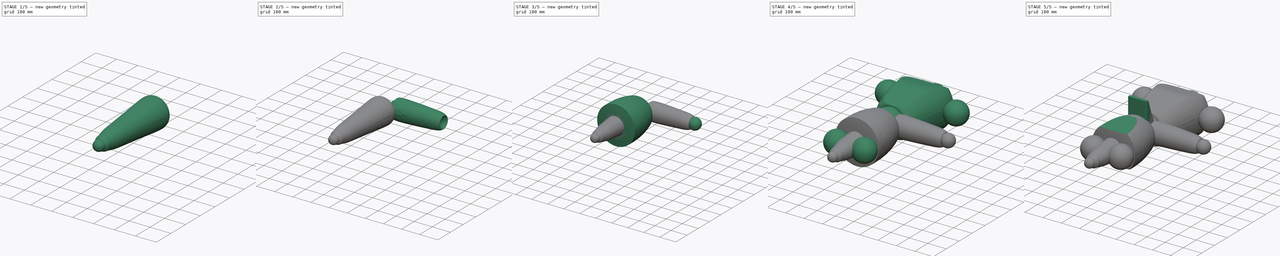
[diagram: build sequence overview — one tinted view per stage of 5, left to right]
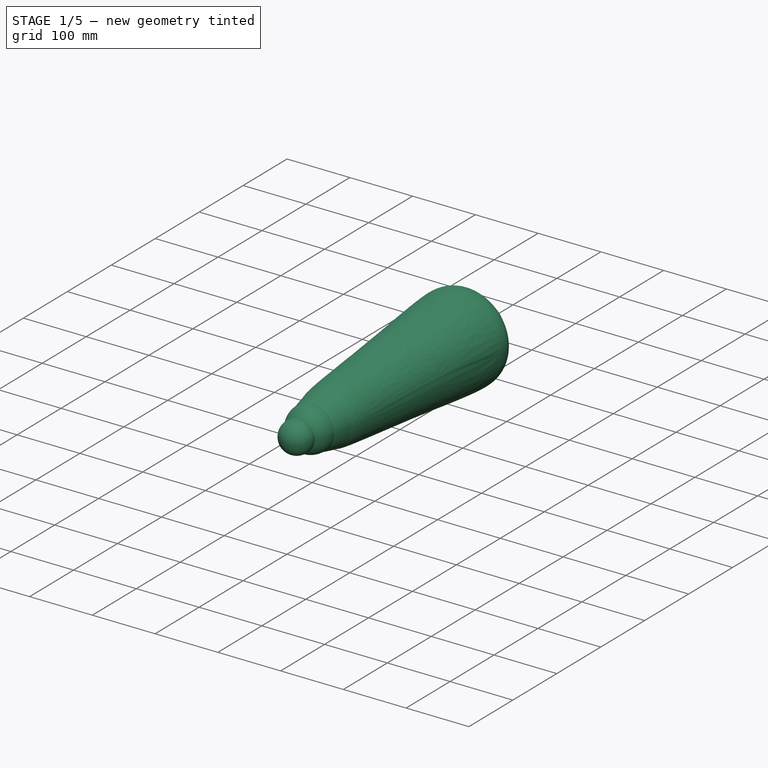
[diagram: stage 1 of 5 — iso view after this stage's code; geometry added in this stage tinted green]
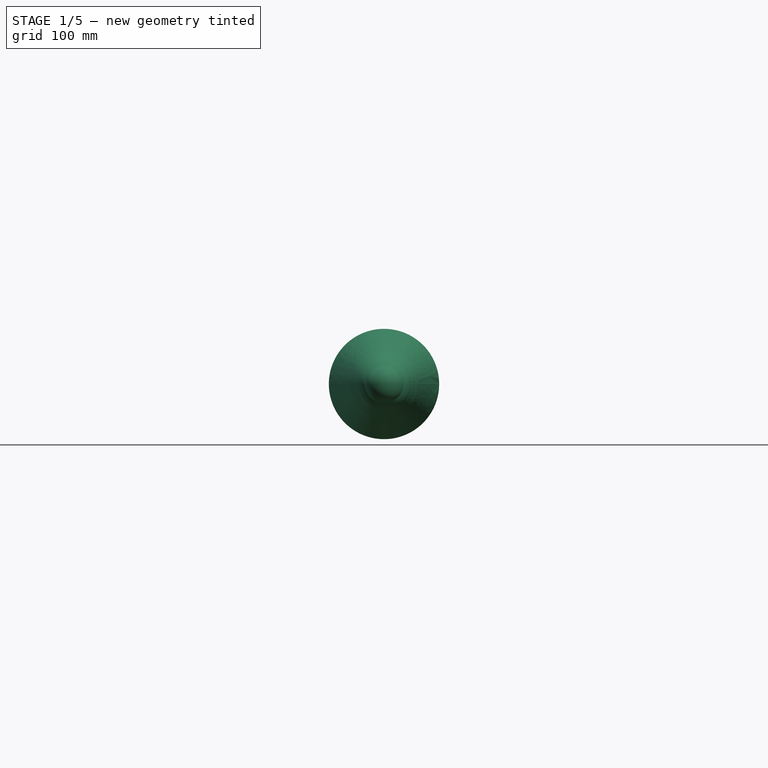
[diagram: stage 1 of 5 — front view after this stage's code; geometry added in this stage tinted green]
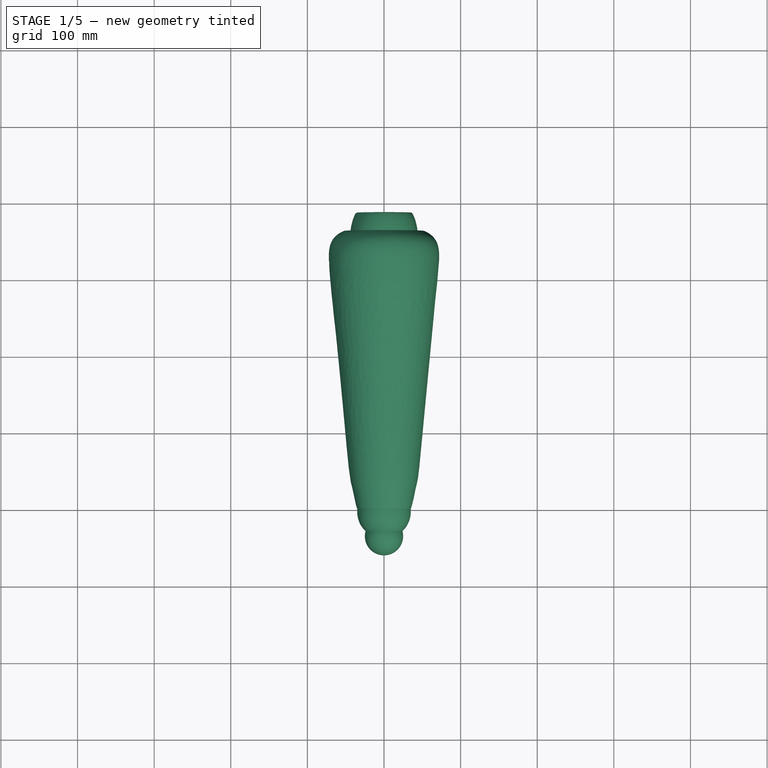
[diagram: stage 1 of 5 — top view after this stage's code; geometry added in this stage tinted green]
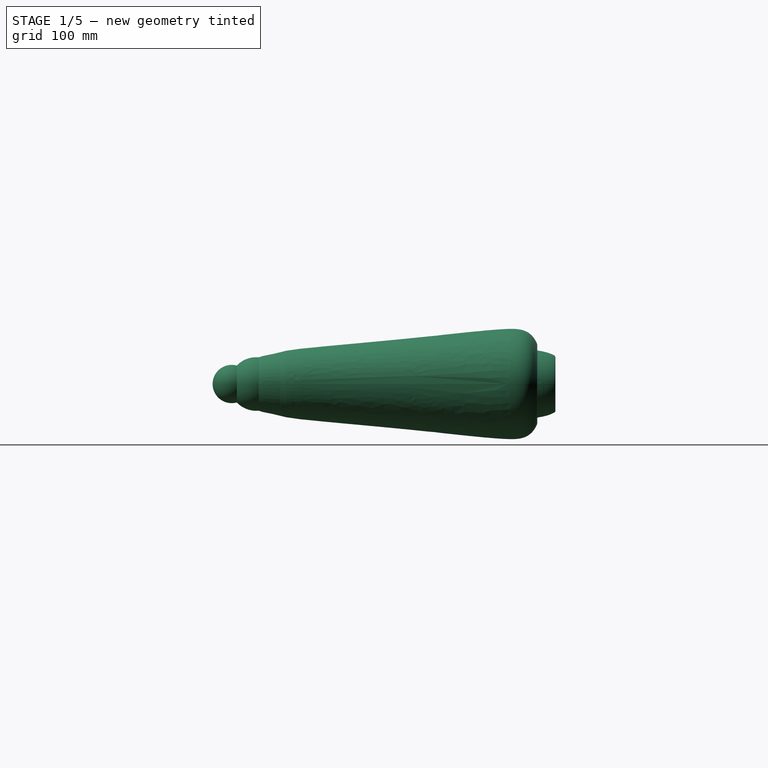
[diagram: stage 1 of 5 — right view after this stage's code; geometry added in this stage tinted green]
FCSTD DOCUMENT  (FreeCAD 0.21R33771 (Git))
Label: Mannequin_mp-dummy-1850mm-standing-999
License: All rights reserved
LicenseURL: http://en.wikipedia.org/wiki/All_rights_reserved
objects: Sketcher::SketchObject×50, PartDesign::CoordinateSystem×29, PartDesign::Fillet×27, PartDesign::Groove×26, PartDesign::Revolution×25, PartDesign::Body×15, PartDesign::Pocket×9, PartDesign::Pad×2, App::Part×1
note: 272 computed .brp shape members not serialized (recipe doc carries the construction recipe); baked Part::Feature solids carry a one-line shape summary decoded from their .brp

FEATURE [PartDesign::Body] Body028  label="Left Thigh"
  Group = -> [Sketch095,Revolution050,Sketch096,Groove042,Fillet042,Sketch097,Groove043,Fillet043,Revolution051,Local_CS046,Local_CS047]
  Origin = -> Origin030
  Placement = pos=(75,900,0) rot=(0,0,1;0rad)
  Tip = -> Revolution051
FEATURE [Sketcher::SketchObject] Sketch098
  FullyConstrained = true
  MapMode = 5
  Support = -> [XY_Plane031]
  sketch-geometry (14):
    g0: LineSegment StartX=0 StartY=0 StartZ=0 EndX=0 EndY=-428.766 EndZ=0
    g1-g7: Circle x7 (B-spline internal-alignment scaffolding for g8; pole/knot coordinates omitted)
    g8: BSplineCurve PolesCount=7 KnotsCount=5 Degree=3 IsPeriodic=0
    g9-g13: GeomPoint x5 (B-spline internal-alignment scaffolding for g8; pole/knot coordinates omitted)
  constraints (9):
    c: Vertical(g0)
    c: PointOnObject(g0,g-2)
    c: Weight(g1) = 1
    c: Coincident(g8,g0)
    c: Equal(g1, g2-g7) x6
    c: Coincident(g8,g0)
    c: InternalAlignment(g1-g7 -> g8) x7
    c: InternalAlignment(g9-g13 -> g8) x5
    c: Block(g8)
FEATURE [PartDesign::Revolution] Revolution052  label="L Shin main body"
  Angle = 360
  Axis = (0,1,0)
  Base = (0,0,0)
  Profile = -> Sketch098
  ReferenceAxis = -> Sketch098 [V_Axis]
  Reversed = true
FEATURE [PartDesign::CoordinateSystem] Local_CS048  label="Left Shin/Knee"
  AttacherType = Attacher::AttachEngine3D
  MapMode = 2
  Support = -> [Revolution052]
FEATURE [PartDesign::CoordinateSystem] Local_CS049  label="Left Shin/Ankle"
  AttacherType = Attacher::AttachEngine3D
  AttachmentOffset = pos=(0,-435,0) rot=(0,0,1;0rad)
  MapMode = 2
  Placement = pos=(0,-435,0) rot=(0,0,1;0rad)
  Support = -> [Revolution052]
FEATURE [Sketcher::SketchObject] Sketch099
  FullyConstrained = true
  MapMode = 5
  Support = -> [XY_Plane031]
  sketch-geometry (2):
    g0: LineSegment StartX=0 StartY=35 StartZ=0 EndX=0 EndY=-35 EndZ=0
    g1: ArcOfCircle CenterX=0 CenterY=0 CenterZ=0 NormalX=0 NormalY=0 NormalZ=1 AngleXU=0 Radius=35 StartAngle=4.71239 EndAngle=7.85398
  constraints (6):
    c: PointOnObject(g1,g0)
    c: Coincident(g1,g0)
    c: Coincident(g1,g0)
    c: Vertical(g0)
    c: Coincident(g1,g-1)
    c: Radius(g1) = 35
FEATURE [PartDesign::Groove] Groove044  label="L knee cut"
  Angle = 360
  Axis = (0,1,0)
  Base = (0,0,0)
  BaseFeature = -> Revolution052
  Profile = -> Sketch099
  ReferenceAxis = -> Sketch099 [V_Axis]
FEATURE [PartDesign::Fillet] Fillet044
  Base = -> Groove044 [Edge1]
  BaseFeature = -> Groove044
  Radius = 3
  SupportTransform = false
  UseAllEdges = false
FEATURE [Sketcher::SketchObject] Sketch100
  FullyConstrained = true
  MapMode = 5
  Support = -> [XY_Plane031]
  sketch-geometry (2):
    g0: LineSegment StartX=0 StartY=-410 StartZ=0 EndX=0 EndY=-460 EndZ=0
    g1: ArcOfCircle CenterX=0 CenterY=-435 CenterZ=0 NormalX=0 NormalY=0 NormalZ=1 AngleXU=0 Radius=25 StartAngle=4.71239 EndAngle=7.85398
  constraints (7):
    c: Vertical(g0)
    c: PointOnObject(g1,g0)
    c: Coincident(g1,g0)
    c: Coincident(g1,g0)
    c: PointOnObject(g1,g-2)
    c: DistanceY(g1,g-1) = 435
    c: Radius(g1) = 25
FEATURE [PartDesign::Groove] Groove045  label="L Ankle cut"
  Angle = 360
  Axis = (0,1,0)
  Base = (0,0,0)
  BaseFeature = -> Fillet044
  Profile = -> Sketch100
  ReferenceAxis = -> Sketch100 [V_Axis]
FEATURE [PartDesign::Fillet] Fillet045
  Base = -> Groove045 [Edge3]
  BaseFeature = -> Groove045
  Radius = 3
  SupportTransform = false
  UseAllEdges = false
FEATURE [PartDesign::Revolution] Revolution053  label="L Ankle"
  Angle = 360
  Axis = (0,1,0)
  Base = (0,0,0)
  BaseFeature = -> Fillet045
  Profile = -> Sketch100
  ReferenceAxis = -> Sketch100 [V_Axis]
  Reversed = true
FEATURE [PartDesign::Body] Body030  label="Left foot"
  Group = -> [Sketch101,Pad002,Fillet046,Sketch102,Groove046,Fillet047,Local_CS050]
  Origin = -> Origin032
  Placement = pos=(75,62,0) rot=(0,0,1;0rad)
  Tip = -> Fillet047
FEATURE [Sketcher::SketchObject] Sketch103
  FullyConstrained = true
  MapMode = 5
  Support = -> [XY_Plane033]
  sketch-geometry (14):
    g0: LineSegment StartX=0 StartY=-29.246 StartZ=0 EndX=0 EndY=-395.97 EndZ=0
    g1-g7: Circle x7 (B-spline internal-alignment scaffolding for g8; pole/knot coordinates omitted)
    g8: BSplineCurve PolesCount=7 KnotsCount=5 Degree=3 IsPeriodic=0
    g9-g13: GeomPoint x5 (B-spline internal-alignment scaffolding for g8; pole/knot coordinates omitted)
  constraints (11):
    c: PointOnObject(g0,g-2)
    c: Vertical(g0)
    c: Weight(g1) = 1
    c: Coincident(g8,g0)
    c: Equal(g1, g2-g7) x6
    c: Coincident(g8,g0)
    c: InternalAlignment(g1-g7 -> g8) x7
    c: InternalAlignment(g9-g13 -> g8) x5
    c: Horizontal(g0,g6)
    c: Horizontal(g0,g2)
    c: Block(g8)
FEATURE [PartDesign::Revolution] Revolution054  label="R Thigh main body"
  Angle = 360
  Axis = (0,1,0)
  Base = (0,0,0)
  Profile = -> Sketch103
  ReferenceAxis = -> Sketch103 [V_Axis]
  Reversed = true
FEATURE [PartDesign::CoordinateSystem] Local_CS051  label="Right Thigh/Big joint LCS"
  AttacherType = Attacher::AttachEngine3D
  MapMode = 2
  Support = -> [Revolution054]
FEATURE [PartDesign::CoordinateSystem] Local_CS052  label="Right Thigh/Knee LCS"
  AttacherType = Attacher::AttachEngine3D
  AttachmentOffset = pos=(0,-403,0) rot=(0,0,1;0rad)
  MapMode = 2
  Placement = pos=(0,-403,0) rot=(0,0,1;0rad)
  Support = -> [Revolution054]
FEATURE [Sketcher::SketchObject] Sketch104
  FullyConstrained = true
  MapMode = 5
  Support = -> [XY_Plane033]
  sketch-geometry (2):
    g0: LineSegment StartX=1.84e-14 StartY=60 StartZ=0 EndX=1.84e-14 EndY=-60 EndZ=0
    g1: ArcOfCircle CenterX=0 CenterY=0 CenterZ=0 NormalX=0 NormalY=0 NormalZ=1 AngleXU=0 Radius=60 StartAngle=4.71239 EndAngle=7.85398
  constraints (6):
    c: Vertical(g0)
    c: PointOnObject(g1,g0)
    c: Coincident(g1,g0)
    c: Coincident(g1,g0)
    c: Coincident(g1,g-1)
    c: Radius(g1) = 60
FEATURE [PartDesign::Groove] Groove047  label="R Big joint"
  Angle = 360
  Axis = (0,1,0)
  Base = (0,0,0)
  BaseFeature = -> Revolution054
  Profile = -> Sketch104
  ReferenceAxis = -> Sketch104 [V_Axis]
FEATURE [PartDesign::Fillet] Fillet048
  Base = -> Groove047 [Edge1]
  BaseFeature = -> Groove047
  Radius = 6
  SupportTransform = false
  UseAllEdges = false
FEATURE [Sketcher::SketchObject] Sketch105
  FullyConstrained = true
  MapMode = 5
  Support = -> [XY_Plane033]
  sketch-geometry (2):
    g0: LineSegment StartX=-6.4e-15 StartY=-368 StartZ=0 EndX=-6.4e-15 EndY=-438 EndZ=0
    g1: ArcOfCircle CenterX=0 CenterY=-403 CenterZ=0 NormalX=0 NormalY=0 NormalZ=1 AngleXU=0 Radius=35 StartAngle=4.71239 EndAngle=7.85398
  constraints (7):
    c: Vertical(g0)
    c: PointOnObject(g1,g0)
    c: Coincident(g1,g0)
    c: Coincident(g1,g0)
    c: PointOnObject(g1,g-2)
    c: DistanceY(g1,g-1) = 403
    c: Radius(g1) = 35
FEATURE [PartDesign::Groove] Groove048  label="R Knee cut"
  Angle = 360
  Axis = (0,1,0)
  Base = (0,0,0)
  BaseFeature = -> Fillet048
  Profile = -> Sketch105
  ReferenceAxis = -> Sketch105 [V_Axis]
FEATURE [PartDesign::Fillet] Fillet049
  Base = -> Groove048 [Edge1]
  BaseFeature = -> Groove048
  Radius = 3
  SupportTransform = false
  UseAllEdges = false
FEATURE [PartDesign::Revolution] Revolution055  label="R Knee"
  Angle = 360
  Axis = (0,1,0)
  Base = (0,0,0)
  BaseFeature = -> Fillet049
  Profile = -> Sketch105
  ReferenceAxis = -> Sketch105 [V_Axis]
  Reversed = true
FEATURE [PartDesign::Body] Body031  label="Right Thigh"
  Group = -> [Sketch103,Revolution054,Sketch104,Groove047,Fillet048,Sketch105,Groove048,Fillet049,Revolution055,Local_CS051,Local_CS052]
  Origin = -> Origin033
  Placement = pos=(-75,900,0) rot=(0,0,1;0rad)
  Tip = -> Revolution055
FEATURE [Sketcher::SketchObject] Sketch106
  FullyConstrained = true
  MapMode = 5
  Support = -> [XY_Plane034]
  sketch-geometry (14):
    g0: LineSegment StartX=0 StartY=0 StartZ=0 EndX=0 EndY=-428.766 EndZ=0
    g1-g7: Circle x7 (B-spline internal-alignment scaffolding for g8; pole/knot coordinates omitted)
    g8: BSplineCurve PolesCount=7 KnotsCount=5 Degree=3 IsPeriodic=0
    g9-g13: GeomPoint x5 (B-spline internal-alignment scaffolding for g8; pole/knot coordinates omitted)
  constraints (9):
    c: Vertical(g0)
    c: PointOnObject(g0,g-2)
    c: Weight(g1) = 1
    c: Coincident(g8,g0)
    c: Equal(g1, g2-g7) x6
    c: Coincident(g8,g0)
    c: InternalAlignment(g1-g7 -> g8) x7
    c: InternalAlignment(g9-g13 -> g8) x5
    c: Block(g8)
FEATURE [PartDesign::Revolution] Revolution056  label="R Shin main body"
  Angle = 360
  Axis = (0,1,0)
  Base = (0,0,0)
  Profile = -> Sketch106
  ReferenceAxis = -> Sketch106 [V_Axis]
  Reversed = true
FEATURE [PartDesign::CoordinateSystem] Local_CS053  label="Right Shin/Knee"
  AttacherType = Attacher::AttachEngine3D
  MapMode = 2
  Support = -> [Revolution056]
FEATURE [PartDesign::CoordinateSystem] Local_CS054  label="Right Shin/Ankle"
  AttacherType = Attacher::AttachEngine3D
  AttachmentOffset = pos=(0,-435,0) rot=(0,0,1;0rad)
  MapMode = 2
  Placement = pos=(0,-435,0) rot=(0,0,1;0rad)
  Support = -> [Revolution056]
FEATURE [Sketcher::SketchObject] Sketch107
  FullyConstrained = true
  MapMode = 5
  Support = -> [XY_Plane034]
  sketch-geometry (2):
    g0: LineSegment StartX=0 StartY=35 StartZ=0 EndX=0 EndY=-35 EndZ=0
    g1: ArcOfCircle CenterX=0 CenterY=0 CenterZ=0 NormalX=0 NormalY=0 NormalZ=1 AngleXU=0 Radius=35 StartAngle=4.71239 EndAngle=7.85398
  constraints (6):
    c: PointOnObject(g1,g0)
    c: Coincident(g1,g0)
    c: Coincident(g1,g0)
    c: Vertical(g0)
    c: Coincident(g1,g-1)
    c: Radius(g1) = 35
FEATURE [PartDesign::Groove] Groove049  label="R knee cut"
  Angle = 360
  Axis = (0,1,0)
  Base = (0,0,0)
  BaseFeature = -> Revolution056
  Profile = -> Sketch107
  ReferenceAxis = -> Sketch107 [V_Axis]
FEATURE [PartDesign::Fillet] Fillet050
  Base = -> Groove049 [Edge1]
  BaseFeature = -> Groove049
  Radius = 3
  SupportTransform = false
  UseAllEdges = false
FEATURE [Sketcher::SketchObject] Sketch108
  FullyConstrained = true
  MapMode = 5
  Support = -> [XY_Plane034]
  sketch-geometry (2):
    g0: LineSegment StartX=0 StartY=-410 StartZ=0 EndX=0 EndY=-460 EndZ=0
    g1: ArcOfCircle CenterX=0 CenterY=-435 CenterZ=0 NormalX=0 NormalY=0 NormalZ=1 AngleXU=0 Radius=25 StartAngle=4.71239 EndAngle=7.85398
  constraints (7):
    c: Vertical(g0)
    c: PointOnObject(g1,g0)
    c: Coincident(g1,g0)
    c: Coincident(g1,g0)
    c: PointOnObject(g1,g-2)
    c: DistanceY(g1,g-1) = 435
    c: Radius(g1) = 25
FEATURE [PartDesign::Groove] Groove050  label="R Ankle cut"
  Angle = 360
  Axis = (0,1,0)
  Base = (0,0,0)
  BaseFeature = -> Fillet050
  Profile = -> Sketch108
  ReferenceAxis = -> Sketch108 [V_Axis]
FEATURE [PartDesign::Fillet] Fillet051
  Base = -> Groove050 [Edge3]
  BaseFeature = -> Groove050
  Radius = 3
  SupportTransform = false
  UseAllEdges = false
FEATURE [PartDesign::Revolution] Revolution057  label="R Ankle"
  Angle = 360
  Axis = (0,1,0)
  Base = (0,0,0)
  BaseFeature = -> Fillet051
  Profile = -> Sketch108
  ReferenceAxis = -> Sketch108 [V_Axis]
  Reversed = true
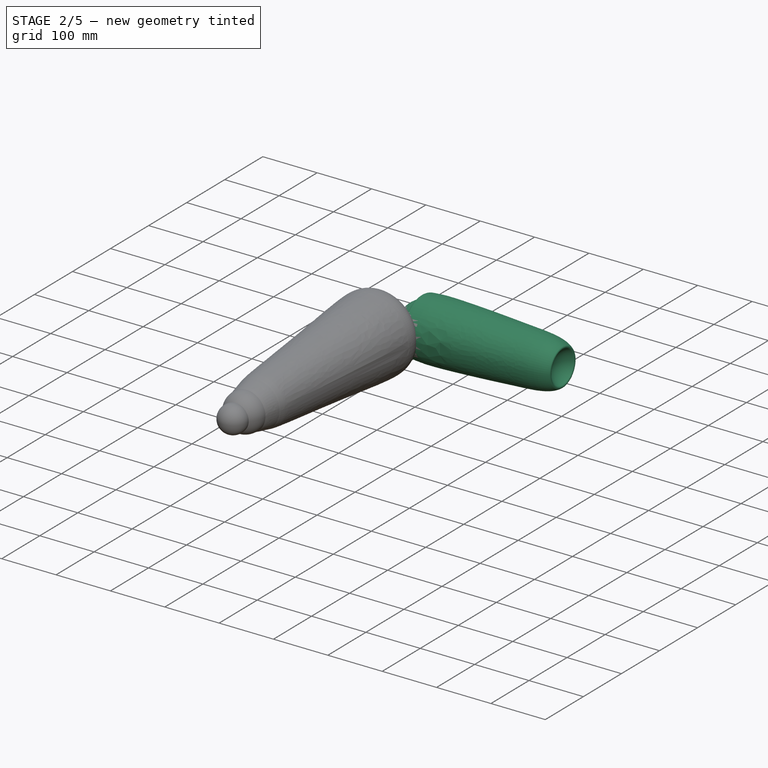
[diagram: stage 2 of 5 — iso view after this stage's code; geometry added in this stage tinted green]
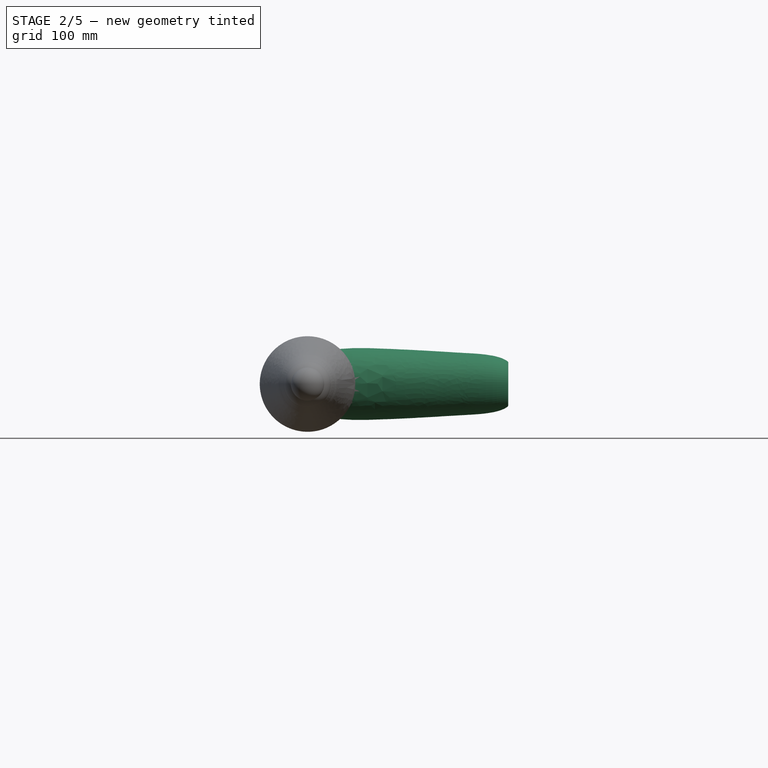
[diagram: stage 2 of 5 — front view after this stage's code; geometry added in this stage tinted green]
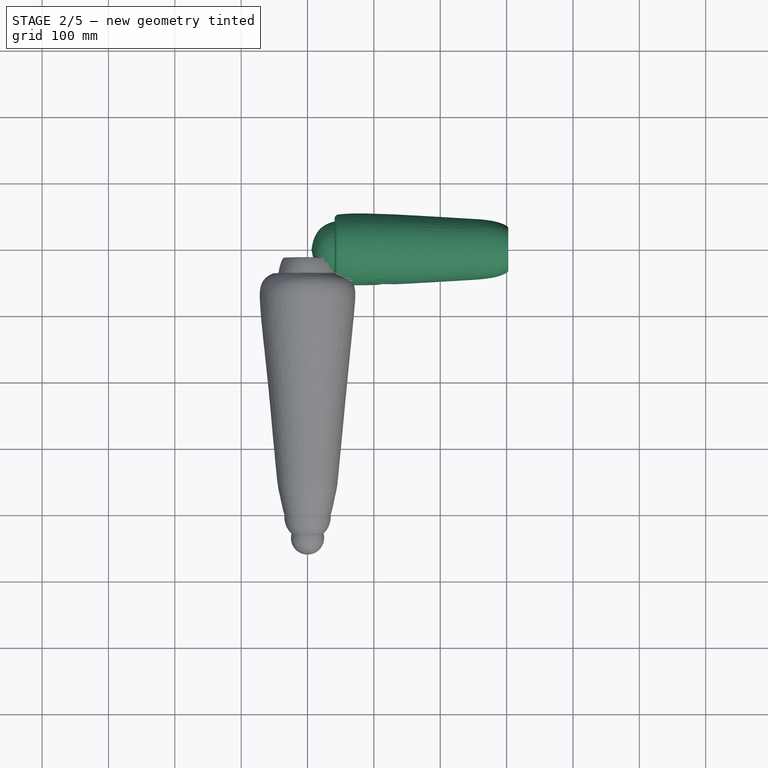
[diagram: stage 2 of 5 — top view after this stage's code; geometry added in this stage tinted green]
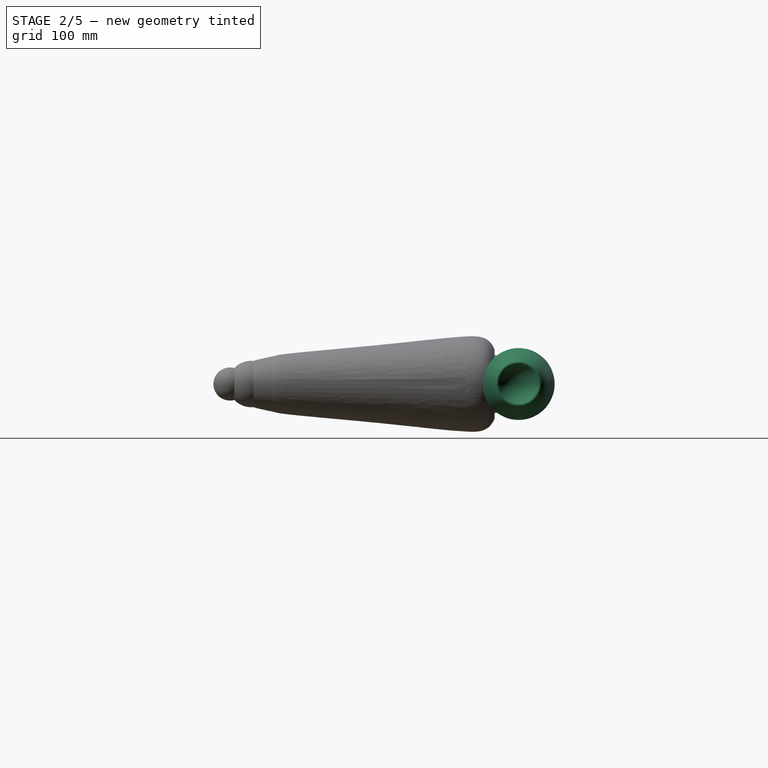
[diagram: stage 2 of 5 — right view after this stage's code; geometry added in this stage tinted green]
FEATURE [PartDesign::Body] Body024  label="Left hand"
  Group = -> [Sketch081,Revolution044,Sketch082,Groove036,Fillet036,Sketch083,Pocket014,Sketch084,Pocket015,Local_CS040]
  Origin = -> Origin026
  Placement = pos=(757,1455,0) rot=(0,0,1;0rad)
  Tip = -> Pocket015
FEATURE [Sketcher::SketchObject] Sketch085
  FullyConstrained = true
  MapMode = 5
  Support = -> [XY_Plane027]
  sketch-geometry (12):
    g0: LineSegment StartX=15.9442 StartY=0 StartZ=0 EndX=306.848 EndY=0 EndZ=0
    g1-g6: Circle x6 (B-spline internal-alignment scaffolding for g7; pole/knot coordinates omitted)
    g7: BSplineCurve PolesCount=6 KnotsCount=4 Degree=3 IsPeriodic=0
    g8-g11: GeomPoint x4 (B-spline internal-alignment scaffolding for g7; pole/knot coordinates omitted)
  constraints (9):
    c: PointOnObject(g0,g-1)
    c: Horizontal(g0)
    c: Weight(g1) = 1
    c: Coincident(g7,g0)
    c: Equal(g1, g2-g6) x5
    c: Coincident(g7,g0)
    c: InternalAlignment(g1-g6 -> g7) x6
    c: InternalAlignment(g8-g11 -> g7) x4
    c: Block(g7)
FEATURE [PartDesign::Revolution] Revolution045  label="R Upper limb"
  Angle = 360
  Axis = (1,0,0)
  Base = (0,0,0)
  Profile = -> Sketch085
  ReferenceAxis = -> Sketch085 [H_Axis]
FEATURE [PartDesign::CoordinateSystem] Local_CS041  label="Right upper limb/Shoulder LCS"
  AttacherType = Attacher::AttachEngine3D
  AttachmentOffset = pos=(0,0,0) rot=(0,0,1;3.14159rad)
  MapMode = 2
  Placement = pos=(0,0,0) rot=(0,0,1;3.14159rad)
  Support = -> [Revolution045]
FEATURE [PartDesign::CoordinateSystem] Local_CS042  label="Right upper limb/Elbow LCS"
  AttacherType = Attacher::AttachEngine3D
  AttachmentOffset = pos=(320,0,0) rot=(0,0,1;3.14159rad)
  MapMode = 2
  Placement = pos=(320,0,0) rot=(0,0,1;3.14159rad)
  Support = -> [Revolution045]
FEATURE [Sketcher::SketchObject] Sketch086
  FullyConstrained = true
  MapMode = 5
  Support = -> [XY_Plane027]
  sketch-geometry (2):
    g0: LineSegment StartX=-60 StartY=0 StartZ=0 EndX=60 EndY=0 EndZ=0
    g1: ArcOfCircle CenterX=0 CenterY=0 CenterZ=0 NormalX=0 NormalY=0 NormalZ=1 AngleXU=0 Radius=60 StartAngle=0 EndAngle=3.14159
  constraints (6):
    c: Horizontal(g0)
    c: PointOnObject(g1,g0)
    c: Coincident(g1,g0)
    c: Coincident(g1,g0)
    c: Coincident(g1,g-1)
    c: Radius(g1) = 60
FEATURE [PartDesign::Groove] Groove037  label="R Sloulder cut"
  Angle = 360
  Axis = (1,0,0)
  Base = (0,0,0)
  BaseFeature = -> Revolution045
  Profile = -> Sketch086
  ReferenceAxis = -> Sketch086 [H_Axis]
  Reversed = true
FEATURE [PartDesign::Fillet] Fillet037  label="R Shoulder fillet"
  Base = -> Groove037 [Edge2]
  BaseFeature = -> Groove037
  Radius = 6
  SupportTransform = false
  UseAllEdges = false
FEATURE [Sketcher::SketchObject] Sketch087
  FullyConstrained = true
  MapMode = 5
  Support = -> [XY_Plane027]
  sketch-geometry (2):
    g0: LineSegment StartX=285 StartY=0 StartZ=0 EndX=355 EndY=0 EndZ=0
    g1: ArcOfCircle CenterX=320 CenterY=0 CenterZ=0 NormalX=0 NormalY=0 NormalZ=1 AngleXU=0 Radius=35 StartAngle=0 EndAngle=3.14159
  constraints (7):
    c: Horizontal(g0)
    c: PointOnObject(g1,g0)
    c: Coincident(g1,g0)
    c: Coincident(g1,g0)
    c: Horizontal(g1,g-1)
    c: DistanceX(g-1,g1) = 320
    c: Radius(g1) = 35
FEATURE [PartDesign::Groove] Groove038  label="R Elbow cut"
  Angle = 360
  Axis = (1,0,0)
  Base = (0,0,0)
  BaseFeature = -> Fillet037
  Profile = -> Sketch087
  ReferenceAxis = -> Sketch087 [H_Axis]
  Reversed = true
FEATURE [PartDesign::Fillet] Fillet038  label="R Elbow fillet"
  Base = -> Groove038 [Edge1]
  BaseFeature = -> Groove038
  Radius = 3
  SupportTransform = false
  UseAllEdges = false
FEATURE [PartDesign::Body] Body025  label="Right Upper limb"
  Group = -> [Sketch085,Revolution045,Sketch086,Groove037,Fillet037,Sketch087,Groove038,Fillet038,Revolution046,Local_CS041,Local_CS042]
  Origin = -> Origin027
  Placement = pos=(-184,1455,0) rot=(0,0,1;3.14159rad)
  Tip = -> Revolution046
FEATURE [Sketcher::SketchObject] Sketch088
  FullyConstrained = true
  MapMode = 5
  Support = -> [XY_Plane028]
  sketch-geometry (12):
    g0: LineSegment StartX=5.14795 StartY=0 StartZ=0 EndX=267.265 EndY=0 EndZ=0
    g1-g6: Circle x6 (B-spline internal-alignment scaffolding for g7; pole/knot coordinates omitted)
    g7: BSplineCurve PolesCount=6 KnotsCount=4 Degree=3 IsPeriodic=0
    g8-g11: GeomPoint x4 (B-spline internal-alignment scaffolding for g7; pole/knot coordinates omitted)
  constraints (9):
    c: PointOnObject(g0,g-1)
    c: Horizontal(g0)
    c: Weight(g1) = 1
    c: Coincident(g7,g0)
    c: Equal(g1, g2-g6) x5
    c: Coincident(g7,g0)
    c: InternalAlignment(g1-g6 -> g7) x6
    c: InternalAlignment(g8-g11 -> g7) x4
    c: Block(g7)
FEATURE [PartDesign::Revolution] Revolution047  label="Right Forearm main body"
  Angle = 360
  Axis = (1,0,0)
  Base = (0,0,0)
  Profile = -> Sketch088
  ReferenceAxis = -> Sketch088 [H_Axis]
FEATURE [PartDesign::CoordinateSystem] Local_CS043  label="Right Forearm/Elbow"
  AttacherType = Attacher::AttachEngine3D
  AttachmentOffset = pos=(0,0,0) rot=(0,0,1;3.14159rad)
  MapMode = 2
  Placement = pos=(0,0,0) rot=(0,0,1;3.14159rad)
  Support = -> [Revolution047]
FEATURE [PartDesign::CoordinateSystem] Local_CS044  label="Right Forearm/Wrist"
  AttacherType = Attacher::AttachEngine3D
  AttachmentOffset = pos=(253,0,0) rot=(0,0,1;3.14159rad)
  MapMode = 2
  Placement = pos=(253,0,0) rot=(0,0,1;3.14159rad)
  Support = -> [Revolution047]
FEATURE [Sketcher::SketchObject] Sketch089
  FullyConstrained = true
  MapMode = 5
  Support = -> [XY_Plane028]
  sketch-geometry (2):
    g0: LineSegment StartX=-35 StartY=4.3e-15 StartZ=0 EndX=35 EndY=4.3e-15 EndZ=0
    g1: ArcOfCircle CenterX=0 CenterY=0 CenterZ=0 NormalX=0 NormalY=0 NormalZ=1 AngleXU=0 Radius=35 StartAngle=0 EndAngle=3.14159
  constraints (6):
    c: Horizontal(g0)
    c: PointOnObject(g1,g0)
    c: Coincident(g1,g0)
    c: Coincident(g1,g0)
    c: Coincident(g1,g-1)
    c: Radius(g1) = 35
FEATURE [PartDesign::Groove] Groove039  label="Right elbow cut"
  Angle = 360
  Axis = (1,0,0)
  Base = (0,0,0)
  BaseFeature = -> Revolution047
  Profile = -> Sketch089
  ReferenceAxis = -> Sketch089 [H_Axis]
  Reversed = true
FEATURE [PartDesign::Fillet] Fillet039  label="Right elbow fillet"
  Base = -> Groove039 [Edge2]
  BaseFeature = -> Groove039
  Radius = 3
  SupportTransform = false
  UseAllEdges = false
FEATURE [Sketcher::SketchObject] Sketch090
  FullyConstrained = true
  MapMode = 5
  Support = -> [XY_Plane028]
  sketch-geometry (2):
    g0: LineSegment StartX=228 StartY=0 StartZ=0 EndX=278 EndY=0 EndZ=0
    g1: ArcOfCircle CenterX=253 CenterY=0 CenterZ=0 NormalX=0 NormalY=0 NormalZ=1 AngleXU=0 Radius=25 StartAngle=-9e-16 EndAngle=3.14159
  constraints (7):
    c: Horizontal(g0)
    c: PointOnObject(g1,g0)
    c: Coincident(g1,g0)
    c: Coincident(g1,g0)
    c: Horizontal(g1,g-1)
    c: DistanceX(g-1,g1) = 253
    c: Radius(g1) = 25
FEATURE [PartDesign::Groove] Groove040  label="Right wrist cut"
  Angle = 360
  Axis = (1,0,0)
  Base = (0,0,0)
  BaseFeature = -> Fillet039
  Profile = -> Sketch090
  ReferenceAxis = -> Sketch090 [H_Axis]
  Reversed = true
FEATURE [PartDesign::Fillet] Fillet040  label="Right wrist fillet"
  Base = -> Groove040 [Edge1]
  BaseFeature = -> Groove040
  Radius = 3
  SupportTransform = false
  UseAllEdges = false
FEATURE [PartDesign::Revolution] Revolution048  label="Right wrist"
  Angle = 360
  Axis = (1,0,0)
  Base = (0,0,0)
  BaseFeature = -> Fillet040
  Profile = -> Sketch090
  ReferenceAxis = -> Sketch090 [H_Axis]
FEATURE [PartDesign::Body] Body026  label="Right Forearm"
  Group = -> [Sketch088,Revolution047,Sketch089,Groove039,Fillet039,Sketch090,Groove040,Fillet040,Revolution048,Local_CS043,Local_CS044]
  Origin = -> Origin028
  Placement = pos=(-504,1455,0) rot=(0,0,1;3.14159rad)
  Tip = -> Revolution048
FEATURE [Sketcher::SketchObject] Sketch091
  FullyConstrained = true
  MapMode = 5
  Support = -> [XY_Plane029]
  sketch-geometry (10):
    g0: LineSegment StartX=6.14917 StartY=0 StartZ=0 EndX=149.382 EndY=0 EndZ=0
    g1-g5: Circle x5 (B-spline internal-alignment scaffolding for g6; pole/knot coordinates omitted)
    g6: BSplineCurve PolesCount=5 KnotsCount=3 Degree=3 IsPeriodic=0
    g7: GeomPoint X=6.14917 Y=0 Z=0
    g8: GeomPoint X=80.1264 Y=42.7238 Z=0
    g9: GeomPoint X=149.382 Y=0 Z=0
  constraints (12):
    c: PointOnObject(g0,g-1)
    c: Horizontal(g0)
    c: Weight(g1) = 1
    c: Coincident(g6,g0)
    c: Equal(g1, g2-g5) x4
    c: Coincident(g6,g0)
    c: InternalAlignment(g1-g5 -> g6) x5
    c: InternalAlignment(g7,g6)
    c: InternalAlignment(g8,g6)
    c: InternalAlignment(g9,g6)
    c: Vertical(g0,g4)
    c: Block(g6)
FEATURE [PartDesign::Revolution] Revolution049  label="R hand main body"
  Angle = 360
  Axis = (1,0,0)
  Base = (0,0,0)
  Profile = -> Sketch091
  ReferenceAxis = -> Sketch091 [H_Axis]
FEATURE [PartDesign::Body] Body027  label="Right hand"
  Group = -> [Sketch091,Revolution049,Sketch092,Groove041,Fillet041,Sketch093,Pocket016,Sketch094,Pocket017,Local_CS045]
  Origin = -> Origin029
  Placement = pos=(-757,1455,0) rot=(0,0,1;3.14159rad)
  Tip = -> Pocket017
FEATURE [Sketcher::SketchObject] Sketch095
  FullyConstrained = true
  MapMode = 5
  Support = -> [XY_Plane030]
  sketch-geometry (14):
    g0: LineSegment StartX=0 StartY=-29.246 StartZ=0 EndX=0 EndY=-395.97 EndZ=0
    g1-g7: Circle x7 (B-spline internal-alignment scaffolding for g8; pole/knot coordinates omitted)
    g8: BSplineCurve PolesCount=7 KnotsCount=5 Degree=3 IsPeriodic=0
    g9-g13: GeomPoint x5 (B-spline internal-alignment scaffolding for g8; pole/knot coordinates omitted)
  constraints (11):
    c: PointOnObject(g0,g-2)
    c: Vertical(g0)
    c: Weight(g1) = 1
    c: Coincident(g8,g0)
    c: Equal(g1, g2-g7) x6
    c: Coincident(g8,g0)
    c: InternalAlignment(g1-g7 -> g8) x7
    c: InternalAlignment(g9-g13 -> g8) x5
    c: Horizontal(g0,g6)
    c: Horizontal(g0,g2)
    c: Block(g8)
FEATURE [PartDesign::Revolution] Revolution050  label="L Thigh main body"
  Angle = 360
  Axis = (0,1,0)
  Base = (0,0,0)
  Profile = -> Sketch095
  ReferenceAxis = -> Sketch095 [V_Axis]
  Reversed = true
FEATURE [PartDesign::CoordinateSystem] Local_CS046  label="Left Thigh/Big joint LCS"
  AttacherType = Attacher::AttachEngine3D
  MapMode = 2
  Support = -> [Revolution050]
FEATURE [PartDesign::CoordinateSystem] Local_CS047  label="Left Thigh/Knee LCS"
  AttacherType = Attacher::AttachEngine3D
  AttachmentOffset = pos=(0,-403,0) rot=(0,0,1;0rad)
  MapMode = 2
  Placement = pos=(0,-403,0) rot=(0,0,1;0rad)
  Support = -> [Revolution050]
FEATURE [Sketcher::SketchObject] Sketch096
  FullyConstrained = true
  MapMode = 5
  Support = -> [XY_Plane030]
  sketch-geometry (2):
    g0: LineSegment StartX=1.84e-14 StartY=60 StartZ=0 EndX=1.84e-14 EndY=-60 EndZ=0
    g1: ArcOfCircle CenterX=0 CenterY=0 CenterZ=0 NormalX=0 NormalY=0 NormalZ=1 AngleXU=0 Radius=60 StartAngle=4.71239 EndAngle=7.85398
  constraints (6):
    c: Vertical(g0)
    c: PointOnObject(g1,g0)
    c: Coincident(g1,g0)
    c: Coincident(g1,g0)
    c: Coincident(g1,g-1)
    c: Radius(g1) = 60
FEATURE [PartDesign::Groove] Groove042  label="L Big joint"
  Angle = 360
  Axis = (0,1,0)
  Base = (0,0,0)
  BaseFeature = -> Revolution050
  Profile = -> Sketch096
  ReferenceAxis = -> Sketch096 [V_Axis]
FEATURE [PartDesign::Fillet] Fillet042
  Base = -> Groove042 [Edge1]
  BaseFeature = -> Groove042
  Radius = 6
  SupportTransform = false
  UseAllEdges = false
FEATURE [Sketcher::SketchObject] Sketch097
  FullyConstrained = true
  MapMode = 5
  Support = -> [XY_Plane030]
  sketch-geometry (2):
    g0: LineSegment StartX=-6.4e-15 StartY=-368 StartZ=0 EndX=-6.4e-15 EndY=-438 EndZ=0
    g1: ArcOfCircle CenterX=0 CenterY=-403 CenterZ=0 NormalX=0 NormalY=0 NormalZ=1 AngleXU=0 Radius=35 StartAngle=4.71239 EndAngle=7.85398
  constraints (7):
    c: Vertical(g0)
    c: PointOnObject(g1,g0)
    c: Coincident(g1,g0)
    c: Coincident(g1,g0)
    c: PointOnObject(g1,g-2)
    c: DistanceY(g1,g-1) = 403
    c: Radius(g1) = 35
FEATURE [PartDesign::Groove] Groove043  label="L Knee cut"
  Angle = 360
  Axis = (0,1,0)
  Base = (0,0,0)
  BaseFeature = -> Fillet042
  Profile = -> Sketch097
  ReferenceAxis = -> Sketch097 [V_Axis]
FEATURE [PartDesign::Fillet] Fillet043
  Base = -> Groove043 [Edge1]
  BaseFeature = -> Groove043
  Radius = 3
  SupportTransform = false
  UseAllEdges = false
FEATURE [PartDesign::Revolution] Revolution051  label="L Knee"
  Angle = 360
  Axis = (0,1,0)
  Base = (0,0,0)
  BaseFeature = -> Fillet043
  Profile = -> Sketch097
  ReferenceAxis = -> Sketch097 [V_Axis]
  Reversed = true
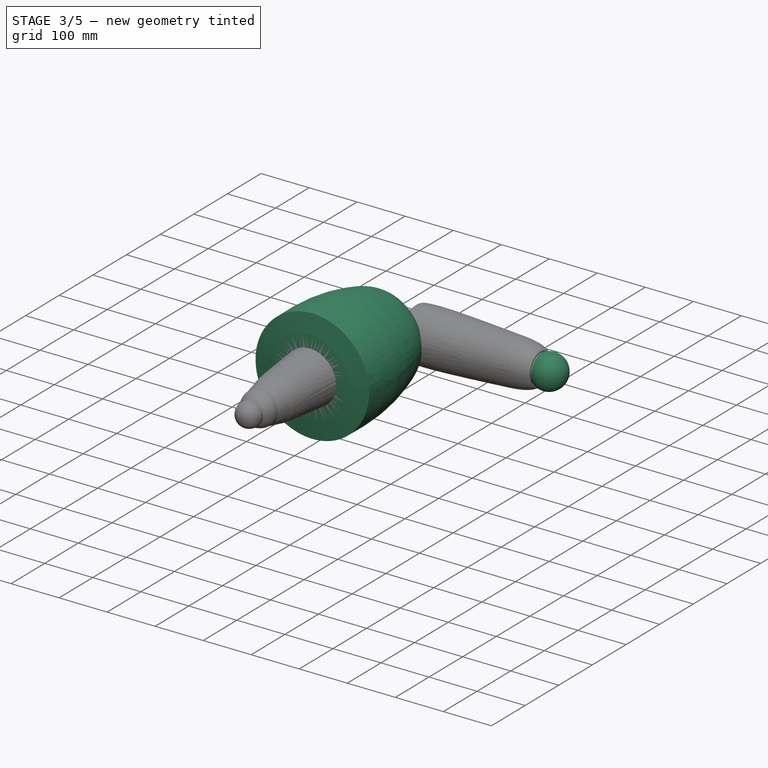
[diagram: stage 3 of 5 — iso view after this stage's code; geometry added in this stage tinted green]
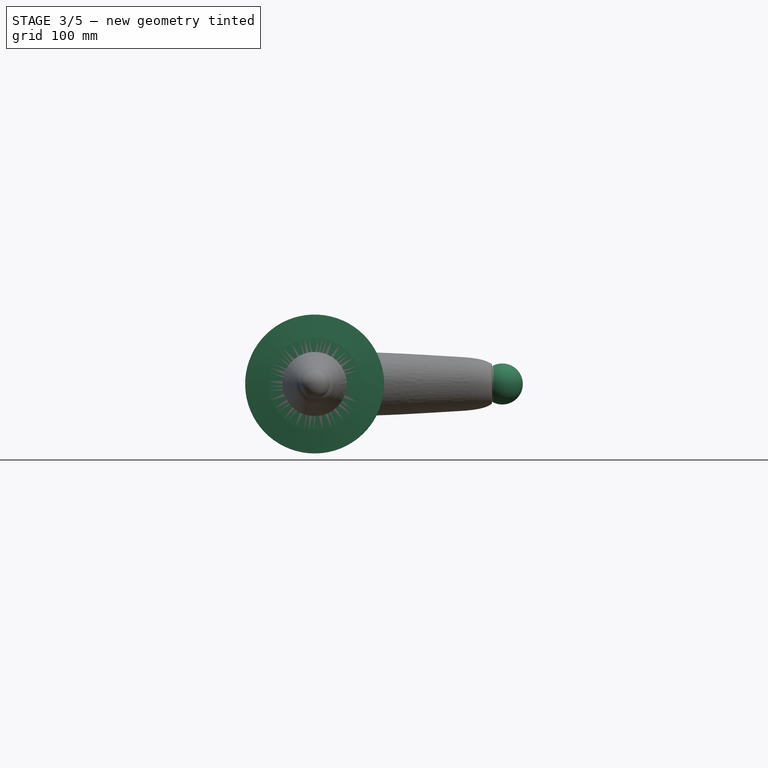
[diagram: stage 3 of 5 — front view after this stage's code; geometry added in this stage tinted green]
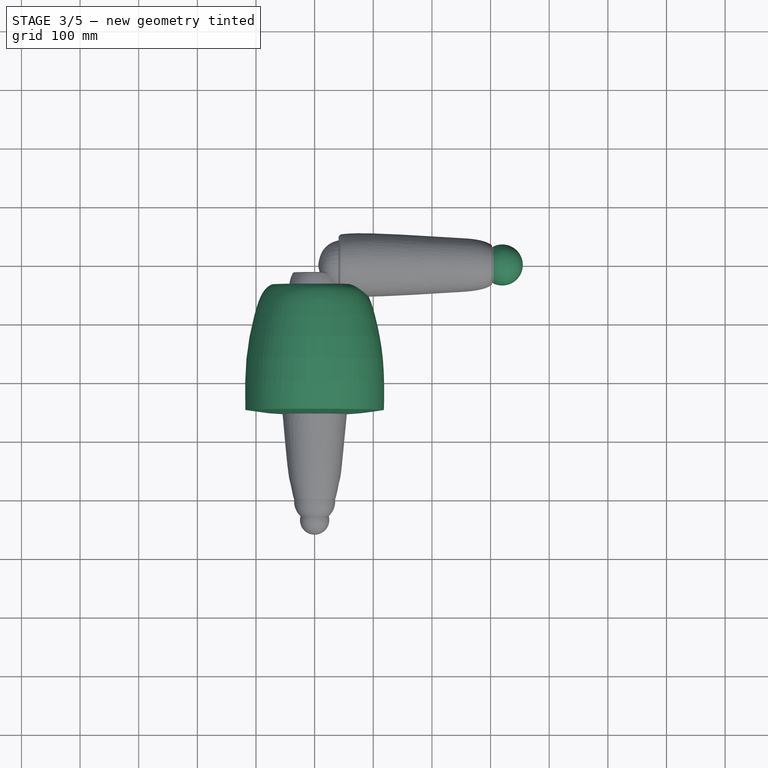
[diagram: stage 3 of 5 — top view after this stage's code; geometry added in this stage tinted green]
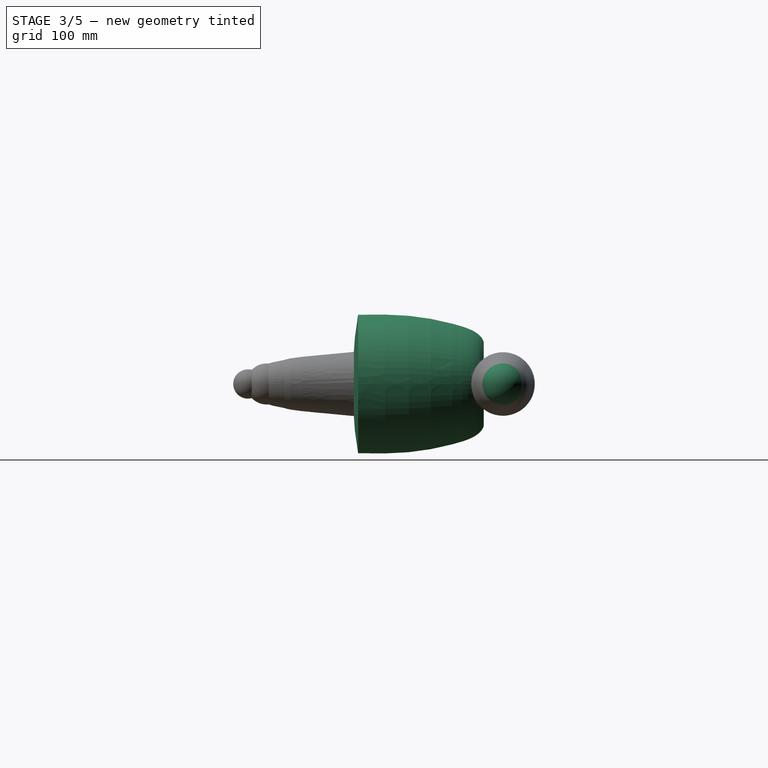
[diagram: stage 3 of 5 — right view after this stage's code; geometry added in this stage tinted green]
FEATURE [PartDesign::Body] Body020  label="Chest"
  Group = -> [Sketch062,Revolution034,Sketch065,Pocket010,Sketch066,Pocket011,Sketch067,Groove027,Fillet028,Sketch068,Groove028,Fillet029,Sketch069,Groove029,Fillet030,Revolution035,Revolution036,Revolution037,Local_CS028,Local_CS029,Local_CS030,Local_CS031]
  Origin = -> Origin022
  Placement = pos=(0,1198,0) rot=(0,0,1;0rad)
  Tip = -> Revolution037
FEATURE [Sketcher::SketchObject] Sketch070
  FullyConstrained = true
  MapMode = 5
  Support = -> [XY_Plane023]
  sketch-geometry (21):
    g0: LineSegment StartX=0 StartY=-29.4305 StartZ=0 EndX=0 EndY=-256.068 EndZ=0
    g1-g7: Circle x7 (B-spline internal-alignment scaffolding for g8; pole/knot coordinates omitted)
    g8: BSplineCurve PolesCount=7 KnotsCount=5 Degree=3 IsPeriodic=0
    g9-g13: GeomPoint x5 (B-spline internal-alignment scaffolding for g8; pole/knot coordinates omitted)
    g14-g17: Circle x4 (B-spline internal-alignment scaffolding for g18; pole/knot coordinates omitted)
    g18: BSplineCurve PolesCount=4 KnotsCount=2 Degree=3 IsPeriodic=0
    g19: GeomPoint X=118.087 Y=-247.149 Z=0
    g20: GeomPoint X=0 Y=-256.068 Z=0
  constraints (21):
    c: PointOnObject(g0,g-2)
    c: Vertical(g0)
    c: Weight(g1) = 1
    c: Coincident(g8,g0)
    c: Equal(g1, g2-g7) x6
    c: InternalAlignment(g1-g7 -> g8) x7
    c: InternalAlignment(g9-g13 -> g8) x5
    c: Weight(g14) = 1
    c: Coincident(g18,g8)
    c: Equal(g14,g15)
    c: Equal(g14,g16)
    c: Equal(g14,g17)
    c: Coincident(g18,g0)
    c: InternalAlignment(g14-g17 -> g18) x4
    c: InternalAlignment(g19,g18)
    c: InternalAlignment(g20,g18)
    c: Horizontal(g16,g0)
    c: Horizontal(g0,g2)
    c: Block(g0)
    c: Block(g8)
    c: Block(g18)
FEATURE [PartDesign::Revolution] Revolution038  label="Main body of hip"
  Angle = 360
  Axis = (0,1,0)
  Base = (0,0,0)
  Profile = -> Sketch070
  ReferenceAxis = -> Sketch070 [V_Axis]
  Reversed = true
FEATURE [PartDesign::CoordinateSystem] Local_CS032  label="Hip/Waist LCS"
  AttacherType = Attacher::AttachEngine3D
  MapMode = 2
  Support = -> [Revolution038]
FEATURE [PartDesign::CoordinateSystem] Local_CS034  label="Hip/Leg joint left"
  AttacherType = Attacher::AttachEngine3D
  AttachmentOffset = pos=(75,-298,0) rot=(0,0,1;0rad)
  MapMode = 2
  Placement = pos=(75,-298,0) rot=(0,0,1;0rad)
  Support = -> [Revolution038]
FEATURE [PartDesign::CoordinateSystem] Local_CS035  label="Hip/Leg joint right"
  AttacherType = Attacher::AttachEngine3D
  AttachmentOffset = pos=(-75,-298,0) rot=(0,0,1;0rad)
  MapMode = 2
  Placement = pos=(-75,-298,0) rot=(0,0,1;0rad)
  Support = -> [Revolution038]
FEATURE [Sketcher::SketchObject] Sketch071
  FullyConstrained = true
  MapMode = 5
  Support = -> [XY_Plane023]
  sketch-geometry (2):
    g0: LineSegment StartX=2.3e-14 StartY=75 StartZ=0 EndX=2.3e-14 EndY=-75 EndZ=0
    g1: ArcOfCircle CenterX=0 CenterY=0 CenterZ=0 NormalX=0 NormalY=0 NormalZ=1 AngleXU=0 Radius=75 StartAngle=4.71239 EndAngle=7.85398
  constraints (6):
    c: Vertical(g0)
    c: PointOnObject(g1,g0)
    c: Coincident(g1,g0)
    c: Coincident(g1,g0)
    c: Coincident(g1,g-1)
    c: Radius(g1) = 75
FEATURE [PartDesign::Groove] Groove030  label="Waist cut of hip"
  Angle = 360
  Axis = (0,1,0)
  Base = (0,0,0)
  BaseFeature = -> Revolution038
  Profile = -> Sketch071
  ReferenceAxis = -> Sketch071 [V_Axis]
FEATURE [PartDesign::Fillet] Fillet031  label="waist"
  Base = -> Groove030 [Edge4]
  BaseFeature = -> Groove030
  Radius = 6
  SupportTransform = false
  UseAllEdges = false
FEATURE [PartDesign::Body] Body021  label="Hip"
  Group = -> [Sketch070,Revolution038,Sketch071,Groove030,Fillet031,Sketch072,Groove031,Revolution039,Sketch073,Pocket012,Sketch074,Pocket013,Local_CS032,Local_CS034,Local_CS035]
  Origin = -> Origin023
  Placement = pos=(0,1198,0) rot=(0,0,1;0rad)
  Tip = -> Pocket013
FEATURE [Sketcher::SketchObject] Sketch075
  FullyConstrained = true
  MapMode = 5
  Support = -> [XY_Plane024]
  sketch-geometry (12):
    g0: LineSegment StartX=15.9442 StartY=0 StartZ=0 EndX=306.848 EndY=0 EndZ=0
    g1-g6: Circle x6 (B-spline internal-alignment scaffolding for g7; pole/knot coordinates omitted)
    g7: BSplineCurve PolesCount=6 KnotsCount=4 Degree=3 IsPeriodic=0
    g8-g11: GeomPoint x4 (B-spline internal-alignment scaffolding for g7; pole/knot coordinates omitted)
  constraints (9):
    c: PointOnObject(g0,g-1)
    c: Horizontal(g0)
    c: Weight(g1) = 1
    c: Coincident(g7,g0)
    c: Equal(g1, g2-g6) x5
    c: Coincident(g7,g0)
    c: InternalAlignment(g1-g6 -> g7) x6
    c: InternalAlignment(g8-g11 -> g7) x4
    c: Block(g7)
FEATURE [PartDesign::Revolution] Revolution040  label="L Upper limb"
  Angle = 360
  Axis = (1,0,0)
  Base = (0,0,0)
  Profile = -> Sketch075
  ReferenceAxis = -> Sketch075 [H_Axis]
FEATURE [PartDesign::CoordinateSystem] Local_CS036  label="Left upper limb/Shoulder LCS"
  AttacherType = Attacher::AttachEngine3D
  MapMode = 2
  Support = -> [Revolution040]
FEATURE [PartDesign::CoordinateSystem] Local_CS037  label="Left upper limb/Elbow LCS"
  AttacherType = Attacher::AttachEngine3D
  AttachmentOffset = pos=(320,0,0) rot=(0,0,1;0rad)
  MapMode = 2
  Placement = pos=(320,0,0) rot=(0,0,1;0rad)
  Support = -> [Revolution040]
FEATURE [Sketcher::SketchObject] Sketch076
  FullyConstrained = true
  MapMode = 5
  Support = -> [XY_Plane024]
  sketch-geometry (2):
    g0: LineSegment StartX=-60 StartY=0 StartZ=0 EndX=60 EndY=0 EndZ=0
    g1: ArcOfCircle CenterX=0 CenterY=0 CenterZ=0 NormalX=0 NormalY=0 NormalZ=1 AngleXU=0 Radius=60 StartAngle=0 EndAngle=3.14159
  constraints (6):
    c: Horizontal(g0)
    c: PointOnObject(g1,g0)
    c: Coincident(g1,g0)
    c: Coincident(g1,g0)
    c: Coincident(g1,g-1)
    c: Radius(g1) = 60
FEATURE [PartDesign::Groove] Groove032  label="L Sloulder cut"
  Angle = 360
  Axis = (1,0,0)
  Base = (0,0,0)
  BaseFeature = -> Revolution040
  Profile = -> Sketch076
  ReferenceAxis = -> Sketch076 [H_Axis]
  Reversed = true
FEATURE [PartDesign::Fillet] Fillet032  label="L Shoulder fillet"
  Base = -> Groove032 [Edge2]
  BaseFeature = -> Groove032
  Radius = 6
  SupportTransform = false
  UseAllEdges = false
FEATURE [Sketcher::SketchObject] Sketch077
  FullyConstrained = true
  MapMode = 5
  Support = -> [XY_Plane024]
  sketch-geometry (2):
    g0: LineSegment StartX=285 StartY=0 StartZ=0 EndX=355 EndY=0 EndZ=0
    g1: ArcOfCircle CenterX=320 CenterY=0 CenterZ=0 NormalX=0 NormalY=0 NormalZ=1 AngleXU=0 Radius=35 StartAngle=0 EndAngle=3.14159
  constraints (7):
    c: Horizontal(g0)
    c: PointOnObject(g1,g0)
    c: Coincident(g1,g0)
    c: Coincident(g1,g0)
    c: Horizontal(g1,g-1)
    c: DistanceX(g-1,g1) = 320
    c: Radius(g1) = 35
FEATURE [PartDesign::Groove] Groove033  label="L Elbow cut"
  Angle = 360
  Axis = (1,0,0)
  Base = (0,0,0)
  BaseFeature = -> Fillet032
  Profile = -> Sketch077
  ReferenceAxis = -> Sketch077 [H_Axis]
  Reversed = true
FEATURE [PartDesign::Fillet] Fillet033  label="L Elbow fillet"
  Base = -> Groove033 [Edge1]
  BaseFeature = -> Groove033
  Radius = 3
  SupportTransform = false
  UseAllEdges = false
FEATURE [PartDesign::Revolution] Revolution041  label="L Elbow"
  Angle = 360
  Axis = (1,0,0)
  Base = (0,0,0)
  BaseFeature = -> Fillet033
  Profile = -> Sketch077
  ReferenceAxis = -> Sketch077 [H_Axis]
FEATURE [PartDesign::Body] Body022  label="Left Upper limb"
  Group = -> [Sketch075,Revolution040,Sketch076,Groove032,Fillet032,Sketch077,Groove033,Fillet033,Revolution041,Local_CS036,Local_CS037]
  Origin = -> Origin024
  Placement = pos=(184,1455,0) rot=(0,0,1;0rad)
  Tip = -> Revolution041
FEATURE [Sketcher::SketchObject] Sketch078
  FullyConstrained = true
  MapMode = 5
  Support = -> [XY_Plane025]
  sketch-geometry (12):
    g0: LineSegment StartX=5.14795 StartY=0 StartZ=0 EndX=267.265 EndY=0 EndZ=0
    g1-g6: Circle x6 (B-spline internal-alignment scaffolding for g7; pole/knot coordinates omitted)
    g7: BSplineCurve PolesCount=6 KnotsCount=4 Degree=3 IsPeriodic=0
    g8-g11: GeomPoint x4 (B-spline internal-alignment scaffolding for g7; pole/knot coordinates omitted)
  constraints (9):
    c: PointOnObject(g0,g-1)
    c: Horizontal(g0)
    c: Weight(g1) = 1
    c: Coincident(g7,g0)
    c: Equal(g1, g2-g6) x5
    c: Coincident(g7,g0)
    c: InternalAlignment(g1-g6 -> g7) x6
    c: InternalAlignment(g8-g11 -> g7) x4
    c: Block(g7)
FEATURE [PartDesign::Revolution] Revolution042  label="Left Forearm main body"
  Angle = 360
  Axis = (1,0,0)
  Base = (0,0,0)
  Profile = -> Sketch078
  ReferenceAxis = -> Sketch078 [H_Axis]
FEATURE [PartDesign::CoordinateSystem] Local_CS038  label="Left Forearm/Elbow"
  AttacherType = Attacher::AttachEngine3D
  MapMode = 2
  Support = -> [Revolution042]
FEATURE [PartDesign::CoordinateSystem] Local_CS039  label="Left Forearm/Wrist"
  AttacherType = Attacher::AttachEngine3D
  AttachmentOffset = pos=(253,0,0) rot=(0,0,1;0rad)
  MapMode = 2
  Placement = pos=(253,0,0) rot=(0,0,1;0rad)
  Support = -> [Revolution042]
FEATURE [Sketcher::SketchObject] Sketch079
  FullyConstrained = true
  MapMode = 5
  Support = -> [XY_Plane025]
  sketch-geometry (2):
    g0: LineSegment StartX=-35 StartY=4.3e-15 StartZ=0 EndX=35 EndY=4.3e-15 EndZ=0
    g1: ArcOfCircle CenterX=0 CenterY=0 CenterZ=0 NormalX=0 NormalY=0 NormalZ=1 AngleXU=0 Radius=35 StartAngle=0 EndAngle=3.14159
  constraints (6):
    c: Horizontal(g0)
    c: PointOnObject(g1,g0)
    c: Coincident(g1,g0)
    c: Coincident(g1,g0)
    c: Coincident(g1,g-1)
    c: Radius(g1) = 35
FEATURE [PartDesign::Groove] Groove034  label="Left elbow cut"
  Angle = 360
  Axis = (1,0,0)
  Base = (0,0,0)
  BaseFeature = -> Revolution042
  Profile = -> Sketch079
  ReferenceAxis = -> Sketch079 [H_Axis]
  Reversed = true
FEATURE [PartDesign::Fillet] Fillet034  label="Left elbow fillet"
  Base = -> Groove034 [Edge2]
  BaseFeature = -> Groove034
  Radius = 3
  SupportTransform = false
  UseAllEdges = false
FEATURE [Sketcher::SketchObject] Sketch080
  FullyConstrained = true
  MapMode = 5
  Support = -> [XY_Plane025]
  sketch-geometry (2):
    g0: LineSegment StartX=228 StartY=0 StartZ=0 EndX=278 EndY=0 EndZ=0
    g1: ArcOfCircle CenterX=253 CenterY=0 CenterZ=0 NormalX=0 NormalY=0 NormalZ=1 AngleXU=0 Radius=25 StartAngle=-9e-16 EndAngle=3.14159
  constraints (7):
    c: Horizontal(g0)
    c: PointOnObject(g1,g0)
    c: Coincident(g1,g0)
    c: Coincident(g1,g0)
    c: Horizontal(g1,g-1)
    c: DistanceX(g-1,g1) = 253
    c: Radius(g1) = 25
FEATURE [PartDesign::Groove] Groove035  label="Left wrist cut"
  Angle = 360
  Axis = (1,0,0)
  Base = (0,0,0)
  BaseFeature = -> Fillet034
  Profile = -> Sketch080
  ReferenceAxis = -> Sketch080 [H_Axis]
  Reversed = true
FEATURE [PartDesign::Fillet] Fillet035  label="Left wrist fillet"
  Base = -> Groove035 [Edge1]
  BaseFeature = -> Groove035
  Radius = 3
  SupportTransform = false
  UseAllEdges = false
FEATURE [PartDesign::Revolution] Revolution043  label="Left wrist"
  Angle = 360
  Axis = (1,0,0)
  Base = (0,0,0)
  BaseFeature = -> Fillet035
  Profile = -> Sketch080
  ReferenceAxis = -> Sketch080 [H_Axis]
FEATURE [PartDesign::Body] Body023  label="Left Forearm"
  Group = -> [Sketch078,Revolution042,Sketch079,Groove034,Fillet034,Sketch080,Groove035,Fillet035,Revolution043,Local_CS038,Local_CS039]
  Origin = -> Origin025
  Placement = pos=(504,1455,0) rot=(0,0,1;0rad)
  Tip = -> Revolution043
FEATURE [Sketcher::SketchObject] Sketch081
  FullyConstrained = true
  MapMode = 5
  Support = -> [XY_Plane026]
  sketch-geometry (10):
    g0: LineSegment StartX=6.14917 StartY=0 StartZ=0 EndX=149.382 EndY=0 EndZ=0
    g1-g5: Circle x5 (B-spline internal-alignment scaffolding for g6; pole/knot coordinates omitted)
    g6: BSplineCurve PolesCount=5 KnotsCount=3 Degree=3 IsPeriodic=0
    g7: GeomPoint X=6.14917 Y=0 Z=0
    g8: GeomPoint X=80.1264 Y=42.7238 Z=0
    g9: GeomPoint X=149.382 Y=0 Z=0
  constraints (12):
    c: PointOnObject(g0,g-1)
    c: Horizontal(g0)
    c: Weight(g1) = 1
    c: Coincident(g6,g0)
    c: Equal(g1, g2-g5) x4
    c: Coincident(g6,g0)
    c: InternalAlignment(g1-g5 -> g6) x5
    c: InternalAlignment(g7,g6)
    c: InternalAlignment(g8,g6)
    c: InternalAlignment(g9,g6)
    c: Vertical(g0,g4)
    c: Block(g6)
FEATURE [PartDesign::Revolution] Revolution044  label="L hand main body"
  Angle = 360
  Axis = (1,0,0)
  Base = (0,0,0)
  Profile = -> Sketch081
  ReferenceAxis = -> Sketch081 [H_Axis]
FEATURE [PartDesign::Revolution] Revolution046  label="R Elbow"
  Angle = 360
  Axis = (1,0,0)
  Base = (0,0,0)
  BaseFeature = -> Fillet038
  Profile = -> Sketch087
  ReferenceAxis = -> Sketch087 [H_Axis]
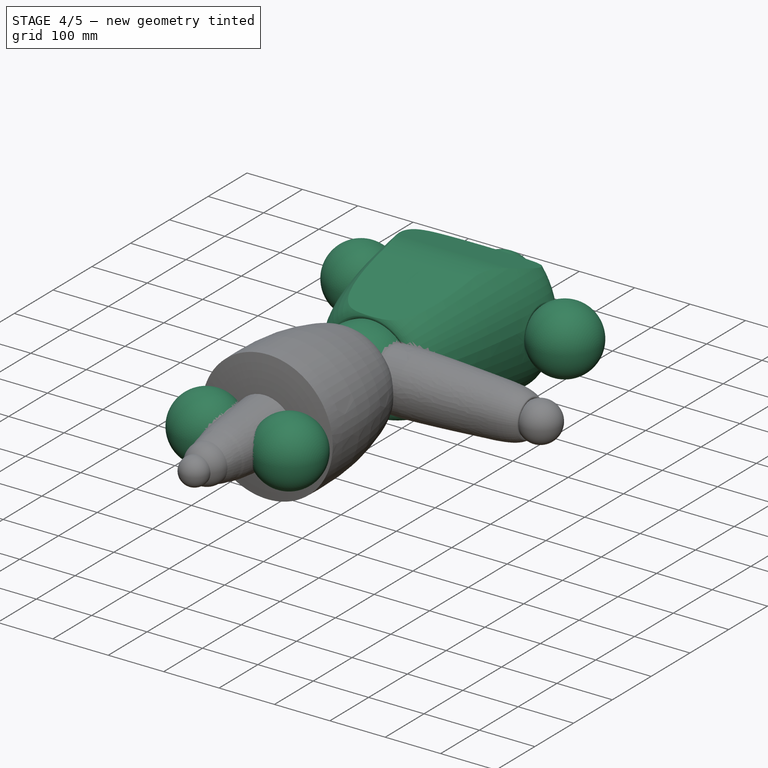
[diagram: stage 4 of 5 — iso view after this stage's code; geometry added in this stage tinted green]
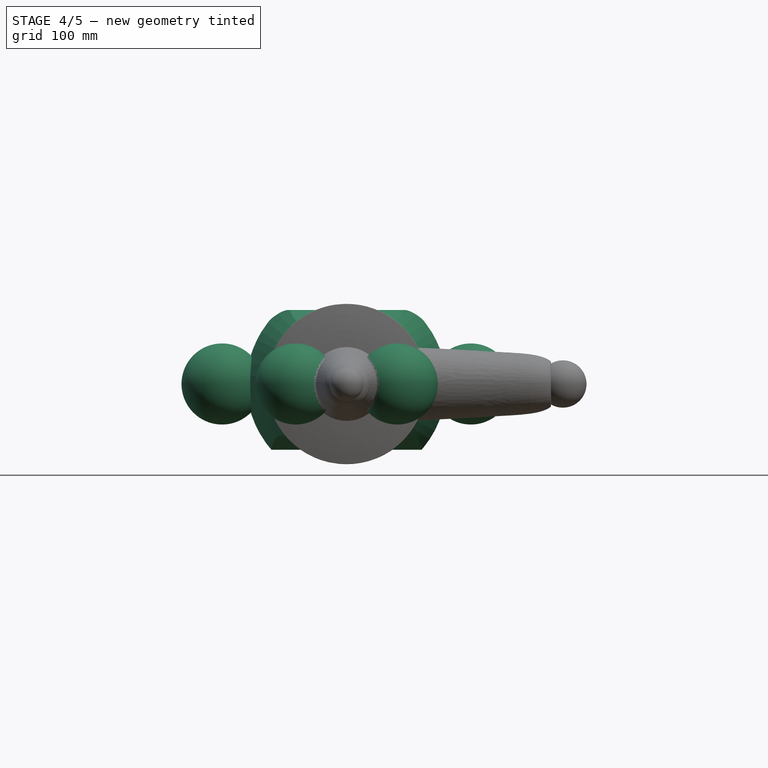
[diagram: stage 4 of 5 — front view after this stage's code; geometry added in this stage tinted green]
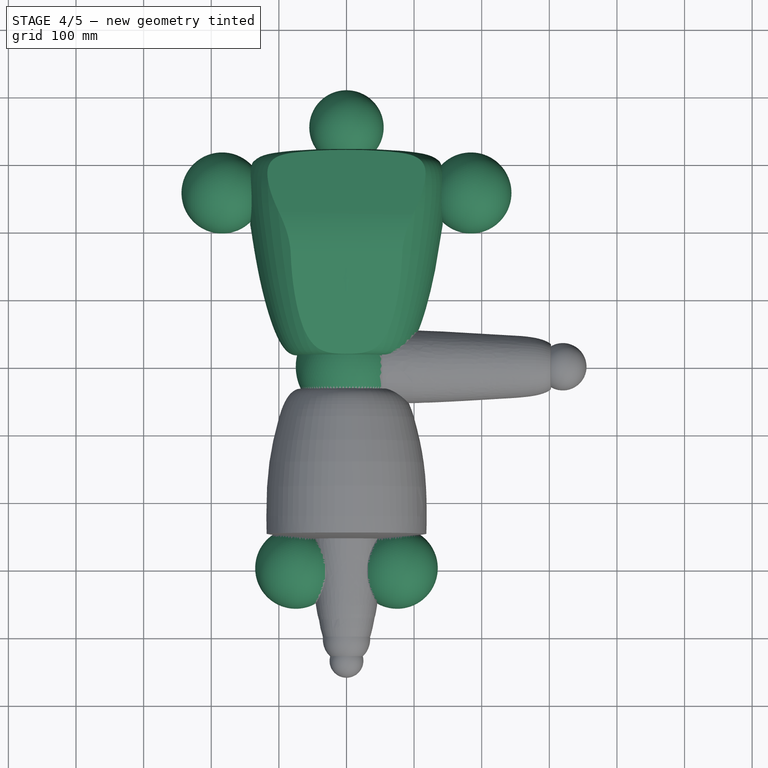
[diagram: stage 4 of 5 — top view after this stage's code; geometry added in this stage tinted green]
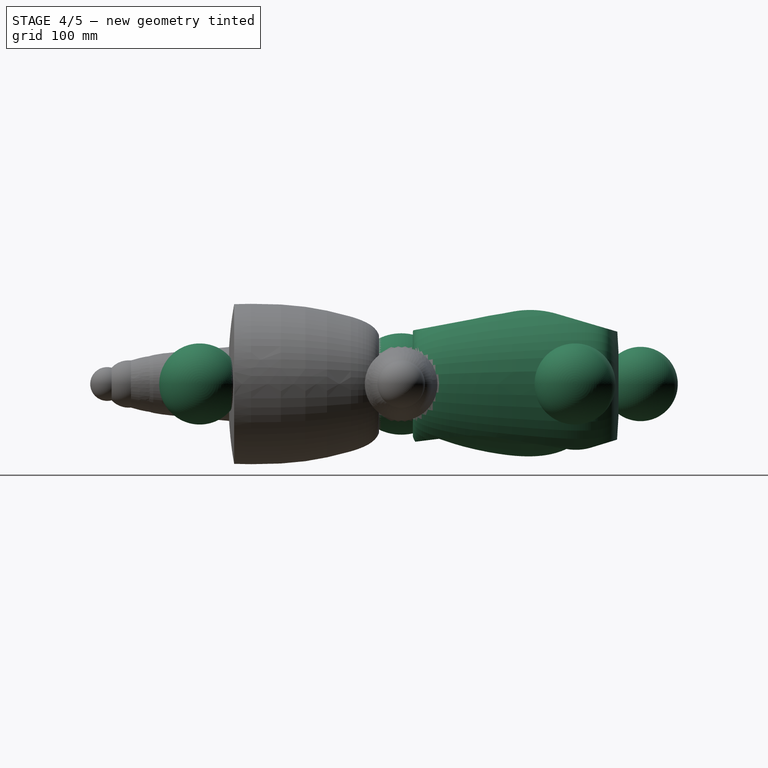
[diagram: stage 4 of 5 — right view after this stage's code; geometry added in this stage tinted green]
FEATURE [PartDesign::CoordinateSystem] LCS_0
  AttacherType = Attacher::AttachEngine3D
  MapMode = 2
  Support = -> [X_Axis020]
FEATURE [Sketcher::SketchObject] Sketch061
  FullyConstrained = true
  MapMode = 5
  Support = -> [XY_Plane021]
  sketch-geometry (14):
    g0: LineSegment StartX=0 StartY=0 StartZ=0 EndX=0 EndY=296.299 EndZ=0
    g1-g7: Circle x7 (B-spline internal-alignment scaffolding for g8; pole/knot coordinates omitted)
    g8: BSplineCurve PolesCount=7 KnotsCount=5 Degree=3 IsPeriodic=0
    g9-g13: GeomPoint x5 (B-spline internal-alignment scaffolding for g8; pole/knot coordinates omitted)
  constraints (12):
    c: Coincident(g0,g-1)
    c: Vertical(g0)
    c: Weight(g1) = 1
    c: Coincident(g8,g0)
    c: Equal(g1, g2-g7) x6
    c: Coincident(g8,g0)
    c: InternalAlignment(g1-g7 -> g8) x7
    c: InternalAlignment(g9-g13 -> g8) x5
    c: Horizontal(g0,g2)
    c: Horizontal(g0,g6)
    c: Block(g0)
    c: Block(g8)
FEATURE [PartDesign::Revolution] Revolution033
  Angle = 360
  Axis = (0,1,0)
  Base = (0,0,0)
  Profile = -> Sketch061
  ReferenceAxis = -> Sketch061 [V_Axis]
  Reversed = true
FEATURE [PartDesign::CoordinateSystem] Local_CS033  label="Head/Neck LCS"
  AttacherType = Attacher::AttachEngine3D
  MapMode = 2
  Support = -> [Revolution033]
FEATURE [Sketcher::SketchObject] Sketch062
  FullyConstrained = true
  MapMode = 5
  Support = -> [XY_Plane022]
  sketch-geometry (18):
    g0: LineSegment StartX=0 StartY=322.019 StartZ=0 EndX=0 EndY=20.3719 EndZ=0
    g1-g9: Circle x9 (B-spline internal-alignment scaffolding for g10; pole/knot coordinates omitted)
    g10: BSplineCurve PolesCount=9 KnotsCount=7 Degree=3 IsPeriodic=0
    g11-g17: GeomPoint x7 (B-spline internal-alignment scaffolding for g10; pole/knot coordinates omitted)
  constraints (12):
    c: Vertical(g0)
    c: PointOnObject(g0,g-2)
    c: Weight(g1) = 1
    c: Coincident(g10,g0)
    c: Equal(g1, g2-g9) x8
    c: Coincident(g10,g0)
    c: InternalAlignment(g1-g9 -> g10) x9
    c: InternalAlignment(g11-g17 -> g10) x7
    c: Horizontal(g0,g2)
    c: Horizontal(g0,g8)
    c: Block(g0)
    c: Block(g10)
FEATURE [PartDesign::Revolution] Revolution034  label="Base shape"
  Angle = 360
  Axis = (0,1,0)
  Base = (0,0,0)
  Profile = -> Sketch062
  ReferenceAxis = -> Sketch062 [V_Axis]
  Reversed = true
FEATURE [PartDesign::Body] Body019  label="Head"
  Group = -> [Sketch061,Revolution033,Sketch063,Groove026,Sketch064,Pocket009,Fillet027,Local_CS033]
  Origin = -> Origin021
  Placement = pos=(0,1552,0) rot=(0,0,1;0rad)
  Tip = -> Fillet027
FEATURE [Sketcher::SketchObject] Sketch065
  FullyConstrained = true
  MapMode = 5
  Placement = pos=(0,0,0) rot=(0.57735,0.57735,0.57735;2.0944rad)
  Support = -> [YZ_Plane022]
  sketch-geometry (6):
    g0: LineSegment StartX=0 StartY=76.0576 StartZ=0 EndX=164.705 EndY=107.04 EndZ=0
    g1: LineSegment StartX=230.198 StartY=103.732 StartZ=0 EndX=327.121 EndY=75.1407 EndZ=0
    g2: LineSegment StartX=327.121 StartY=75.1407 StartZ=0 EndX=327.121 EndY=181.805 EndZ=0
    g3: LineSegment StartX=327.121 StartY=181.805 StartZ=0 EndX=0 EndY=181.805 EndZ=0
    g4: LineSegment StartX=0 StartY=181.805 StartZ=0 EndX=0 EndY=76.0576 EndZ=0
    g5: ArcOfCircle CenterX=190.587 CenterY=-30.5467 CenterZ=0 NormalX=0 NormalY=0 NormalZ=1 AngleXU=0 Radius=140 StartAngle=1.28394 EndAngle=1.75673
  constraints (14):
    c: Coincident(g1,g2)
    c: Vertical(g2)
    c: Coincident(g2,g3)
    c: Horizontal(g3)
    c: Coincident(g3,g4)
    c: Coincident(g4,g0)
    c: Vertical(g4)
    c: PointOnObject(g3,g-2)
    c: Tangent(g1,g5) = 1.5708
    c: Tangent(g0,g5) = 1.5708
    c: Radius(g5) = 140
    c: Block(g0)
    c: Block(g1)
    c: Block(g3)
FEATURE [PartDesign::Pocket] Pocket010  label="Front cut"
  BaseFeature = -> Revolution034
  Direction = (-1,2e-16,-3e-16)
  Length = 5
  Length2 = 5
  Midplane = true
  Profile = -> Sketch065
  ReferenceAxis = -> Sketch065 [N_Axis]
  Type = 1
FEATURE [Sketcher::SketchObject] Sketch066
  FullyConstrained = true
  MapMode = 5
  Placement = pos=(0,0,0) rot=(0.57735,0.57735,0.57735;2.0944rad)
  Support = -> [YZ_Plane022]
  sketch-geometry (8):
    g0: LineSegment StartX=0 StartY=-87.996 StartZ=0 EndX=81.1566 EndY=-77.888 EndZ=0
    g1: LineSegment StartX=139.259 StartY=-78.9913 StartZ=0 EndX=245.223 EndY=-96.2967 EndZ=0
    g2: LineSegment StartX=281.434 StartY=-93.8397 StartZ=0 EndX=341.01 EndY=-75.582 EndZ=0
    g3: LineSegment StartX=341.01 StartY=-75.582 StartZ=0 EndX=341.01 EndY=-197.004 EndZ=0
    g4: LineSegment StartX=341.01 StartY=-197.004 StartZ=0 EndX=0 EndY=-197.004 EndZ=0
    g5: LineSegment StartX=0 StartY=-197.004 StartZ=0 EndX=0 EndY=-87.996 EndZ=0
    g6: ArcOfCircle CenterX=106.373 CenterY=-280.353 CenterZ=0 NormalX=0 NormalY=0 NormalZ=1 AngleXU=0 Radius=204.029 StartAngle=1.40891 EndAngle=1.69471
    g7: ArcOfCircle CenterX=258.073 CenterY=-17.6116 CenterZ=0 NormalX=0 NormalY=0 NormalZ=1 AngleXU=0 Radius=79.7275 StartAngle=4.5505 EndAngle=5.00977
  constraints (16):
    c: Coincident(g2,g3)
    c: Coincident(g3,g4)
    c: Horizontal(g4)
    c: Coincident(g4,g5)
    c: Coincident(g5,g0)
    c: Vertical(g5)
    c: Vertical(g3)
    c: PointOnObject(g4,g-2)
    c: Tangent(g1,g6) = 1.5708
    c: Tangent(g0,g6) = 1.5708
    c: Tangent(g1,g7) = -1.5708
    c: Tangent(g2,g7) = -1.5708
    c: Block(g0)
    c: Block(g2)
    c: Block(g1)
    c: Block(g4)
FEATURE [PartDesign::Pocket] Pocket011  label="Back cut"
  BaseFeature = -> Pocket010
  Direction = (-1,2e-16,-3e-16)
  Length = 5
  Length2 = 5
  Midplane = true
  Profile = -> Sketch066
  ReferenceAxis = -> Sketch066 [N_Axis]
  Type = 1
FEATURE [Sketcher::SketchObject] Sketch067
  FullyConstrained = true
  MapMode = 5
  Support = -> [XY_Plane022]
  sketch-geometry (2):
    g0: LineSegment StartX=0 StartY=409 StartZ=0 EndX=0 EndY=299 EndZ=0
    g1: ArcOfCircle CenterX=0 CenterY=354 CenterZ=0 NormalX=0 NormalY=0 NormalZ=1 AngleXU=0 Radius=55 StartAngle=4.71239 EndAngle=7.85398
  constraints (7):
    c: Vertical(g0)
    c: PointOnObject(g1,g0)
    c: Coincident(g1,g0)
    c: PointOnObject(g1,g-2)
    c: Coincident(g1,g0)
    c: Radius(g1) = 55
    c: DistanceY(g-1,g1) = 354
FEATURE [PartDesign::Groove] Groove027  label="Neck cut"
  Angle = 360
  Axis = (0,1,0)
  Base = (0,0,0)
  BaseFeature = -> Pocket011
  Profile = -> Sketch067
  ReferenceAxis = -> Sketch067 [V_Axis]
FEATURE [PartDesign::Fillet] Fillet028  label="Neck fillet"
  Base = -> Groove027 [Edge1]
  BaseFeature = -> Groove027
  Radius = 6
  SupportTransform = false
  UseAllEdges = false
FEATURE [Sketcher::SketchObject] Sketch068
  FullyConstrained = true
  MapMode = 5
  Support = -> [XY_Plane022]
  sketch-geometry (2):
    g0: LineSegment StartX=-1.38e-14 StartY=75 StartZ=0 EndX=-1.38e-14 EndY=-75 EndZ=0
    g1: ArcOfCircle CenterX=0 CenterY=0 CenterZ=0 NormalX=0 NormalY=0 NormalZ=1 AngleXU=0 Radius=75 StartAngle=4.71239 EndAngle=7.85398
  constraints (6):
    c: Vertical(g0)
    c: Coincident(g1,g-1)
    c: Coincident(g1,g0)
    c: Coincident(g1,g0)
    c: PointOnObject(g0,g-2)
    c: Radius(g1) = 75
FEATURE [PartDesign::Groove] Groove028  label="Waist cut"
  Angle = 360
  Axis = (0,1,0)
  Base = (0,0,0)
  BaseFeature = -> Fillet028
  Profile = -> Sketch068
  ReferenceAxis = -> Sketch068 [V_Axis]
FEATURE [PartDesign::Fillet] Fillet029  label="Waist fillet"
  Base = -> Groove028 [Edge3]
  BaseFeature = -> Groove028
  Radius = 5
  SupportTransform = false
  UseAllEdges = false
FEATURE [Sketcher::SketchObject] Sketch069
  FullyConstrained = true
  MapMode = 5
  Support = -> [XY_Plane022]
  sketch-geometry (4):
    g0: LineSegment StartX=124 StartY=257 StartZ=0 EndX=244 EndY=257 EndZ=0
    g1: ArcOfCircle CenterX=184 CenterY=257 CenterZ=0 NormalX=0 NormalY=0 NormalZ=1 AngleXU=0 Radius=60 StartAngle=0 EndAngle=3.14159
    g2: LineSegment StartX=-244 StartY=257 StartZ=0 EndX=-124 EndY=257 EndZ=0
    g3: ArcOfCircle CenterX=-184 CenterY=257 CenterZ=0 NormalX=0 NormalY=0 NormalZ=1 AngleXU=0 Radius=60 StartAngle=4e-16 EndAngle=3.14159
  constraints (14):
    c: Horizontal(g0)
    c: PointOnObject(g1,g0)
    c: Coincident(g1,g0)
    c: Coincident(g1,g0)
    c: DistanceY(g-1,g1) = 257
    c: Radius(g1) = 60
    c: DistanceX(g-1,g1) = 184
    c: Horizontal(g2)
    c: PointOnObject(g3,g2)
    c: Coincident(g3,g2)
    c: Coincident(g3,g2)
    c: Horizontal(g2,g0)
    c: Radius(g3) = 60
    c: DistanceX(g3,g-1) = 184
FEATURE [PartDesign::Groove] Groove029  label="Shoulders cut"
  Angle = 360
  Axis = (1,0,0)
  Base = (124,257,0)
  BaseFeature = -> Fillet029
  Profile = -> Sketch069
  ReferenceAxis = -> Sketch069 [Edge1]
FEATURE [PartDesign::Fillet] Fillet030  label="Shoulders fillet"
  Base = -> Groove029 [Edge6,Edge3,Edge12,Edge13]
  BaseFeature = -> Groove029
  Radius = 6
  SupportTransform = false
  UseAllEdges = false
FEATURE [PartDesign::Revolution] Revolution035  label="Neck add"
  Angle = 360
  Axis = (0,1,0)
  Base = (0,0,0)
  BaseFeature = -> Fillet030
  Profile = -> Sketch067
  ReferenceAxis = -> Sketch067 [V_Axis]
  Reversed = true
FEATURE [PartDesign::Revolution] Revolution036  label="waist add"
  Angle = 360
  Axis = (0,1,0)
  Base = (0,0,0)
  BaseFeature = -> Revolution035
  Profile = -> Sketch068
  ReferenceAxis = -> Sketch068 [V_Axis]
  Reversed = true
FEATURE [PartDesign::Revolution] Revolution037  label="Shoulders"
  Angle = 360
  Axis = (1,0,0)
  Base = (-244,257,0)
  BaseFeature = -> Revolution036
  Profile = -> Sketch069
  ReferenceAxis = -> Sketch069 [Edge3]
FEATURE [Sketcher::SketchObject] Sketch072
  FullyConstrained = true
  MapMode = 5
  Support = -> [XY_Plane023]
  sketch-geometry (4):
    g0: LineSegment StartX=15 StartY=-298 StartZ=0 EndX=135 EndY=-298 EndZ=0
    g1: ArcOfCircle CenterX=75 CenterY=-298 CenterZ=0 NormalX=0 NormalY=0 NormalZ=1 AngleXU=0 Radius=60 StartAngle=0 EndAngle=3.14159
    g2: LineSegment StartX=-135 StartY=-298 StartZ=0 EndX=-15 EndY=-298 EndZ=0
    g3: ArcOfCircle CenterX=-75 CenterY=-298 CenterZ=0 NormalX=0 NormalY=0 NormalZ=1 AngleXU=0 Radius=60 StartAngle=3e-16 EndAngle=3.14159
  constraints (14):
    c: PointOnObject(g1,g0)
    c: Coincident(g1,g0)
    c: Coincident(g1,g0)
    c: Horizontal(g0)
    c: DistanceX(g-1,g1) = 75
    c: DistanceY(g1,g-1) = 298
    c: Radius(g1) = 60
    c: Horizontal(g2)
    c: PointOnObject(g3,g2)
    c: Coincident(g3,g2)
    c: Coincident(g3,g2)
    c: Horizontal(g2,g0)
    c: Equal(g3,g1)
    c: DistanceX(g3,g-1) = 75
FEATURE [PartDesign::Groove] Groove031  label="Hip joints cuts"
  Angle = 360
  Axis = (1,0,0)
  Base = (15,-298,0)
  BaseFeature = -> Fillet031
  Profile = -> Sketch072
  ReferenceAxis = -> Sketch072 [Edge1]
FEATURE [PartDesign::Revolution] Revolution039  label="Hip joints"
  Angle = 360
  Axis = (1,0,0)
  Base = (15,-298,0)
  BaseFeature = -> Groove031
  Profile = -> Sketch072
  ReferenceAxis = -> Sketch072 [Edge1]
  Reversed = true
FEATURE [PartDesign::CoordinateSystem] Local_CS045  label="Right Hand/Wrist LCS"
  AttacherType = Attacher::AttachEngine3D
  AttachmentOffset = pos=(0,0,0) rot=(0,0,1;3.14159rad)
  MapMode = 2
  Placement = pos=(0,0,0) rot=(0,0,1;3.14159rad)
  Support = -> [Revolution049]
FEATURE [Sketcher::SketchObject] Sketch092
  FullyConstrained = true
  MapMode = 5
  Support = -> [XY_Plane029]
  sketch-geometry (2):
    g0: LineSegment StartX=-25 StartY=0 StartZ=0 EndX=25 EndY=0 EndZ=0
    g1: ArcOfCircle CenterX=0 CenterY=0 CenterZ=0 NormalX=0 NormalY=0 NormalZ=1 AngleXU=0 Radius=25 StartAngle=0 EndAngle=3.14159
  constraints (6):
    c: Horizontal(g0)
    c: PointOnObject(g1,g0)
    c: Coincident(g1,g0)
    c: Coincident(g1,g0)
    c: Coincident(g1,g-1)
    c: Radius(g1) = 25
FEATURE [PartDesign::Groove] Groove041  label="wrist cut"
  Angle = 360
  Axis = (1,0,0)
  Base = (0,0,0)
  BaseFeature = -> Revolution049
  Profile = -> Sketch092
  ReferenceAxis = -> Sketch092 [H_Axis]
  Reversed = true
FEATURE [PartDesign::Fillet] Fillet041  label="wrist fillet"
  Base = -> Groove041 [Edge1]
  BaseFeature = -> Groove041
  Radius = 3
  SupportTransform = false
  UseAllEdges = false
FEATURE [Sketcher::SketchObject] Sketch093
  FullyConstrained = true
  MapMode = 5
  Placement = pos=(0,0,0) rot=(0.57735,0.57735,0.57735;2.0944rad)
  Support = -> [YZ_Plane029]
  sketch-geometry (3):
    g0: ArcOfCircle CenterX=0 CenterY=125.857 CenterZ=0 NormalX=0 NormalY=0 NormalZ=1 AngleXU=0 Radius=99.8092 StartAngle=3.99571 EndAngle=5.39163
    g1: LineSegment StartX=-65.5632 StartY=50.6013 StartZ=0 EndX=0 EndY=125.857 EndZ=0
    g2: LineSegment StartX=0 StartY=125.857 StartZ=0 EndX=62.7007 EndY=48.2002 EndZ=0
  constraints (6):
    c: PointOnObject(g0,g-2)
    c: Coincident(g1,g0)
    c: Coincident(g1,g0)
    c: Coincident(g2,g0)
    c: Coincident(g2,g0)
    c: Block(g0)
FEATURE [PartDesign::Pocket] Pocket016
  BaseFeature = -> Fillet041
  Direction = (1,0,0)
  Length = 5
  Length2 = 5
  Profile = -> Sketch093
  ReferenceAxis = -> Sketch093 [N_Axis]
  Type = 1
  UseCustomVector = true
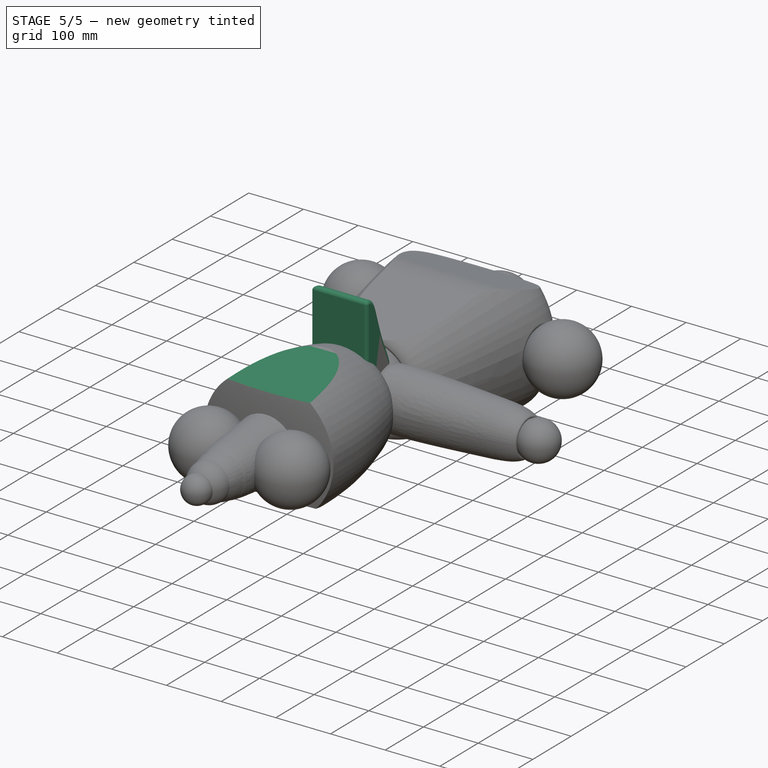
[diagram: stage 5 of 5 — iso view after this stage's code; geometry added in this stage tinted green]
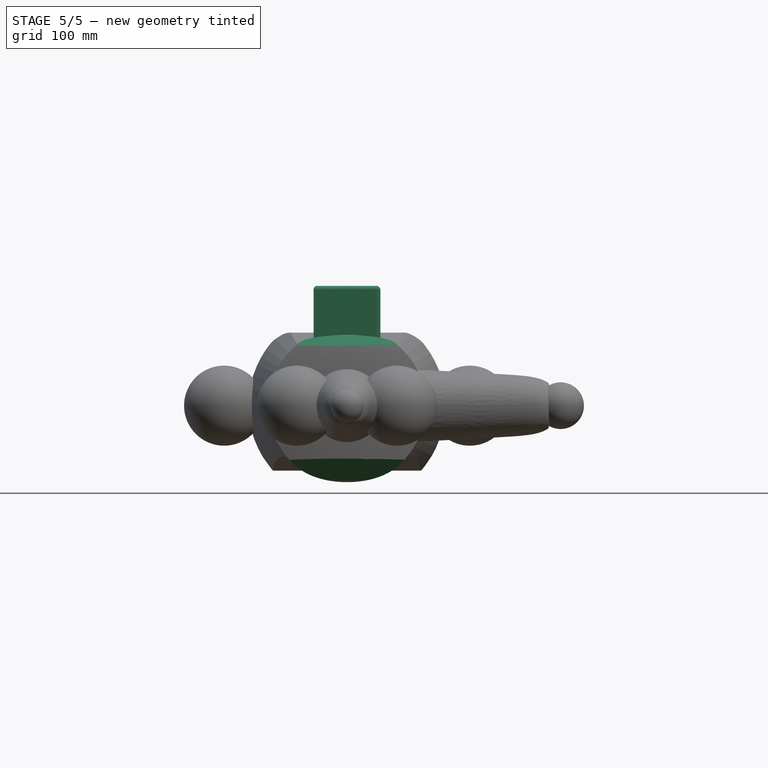
[diagram: stage 5 of 5 — front view after this stage's code; geometry added in this stage tinted green]
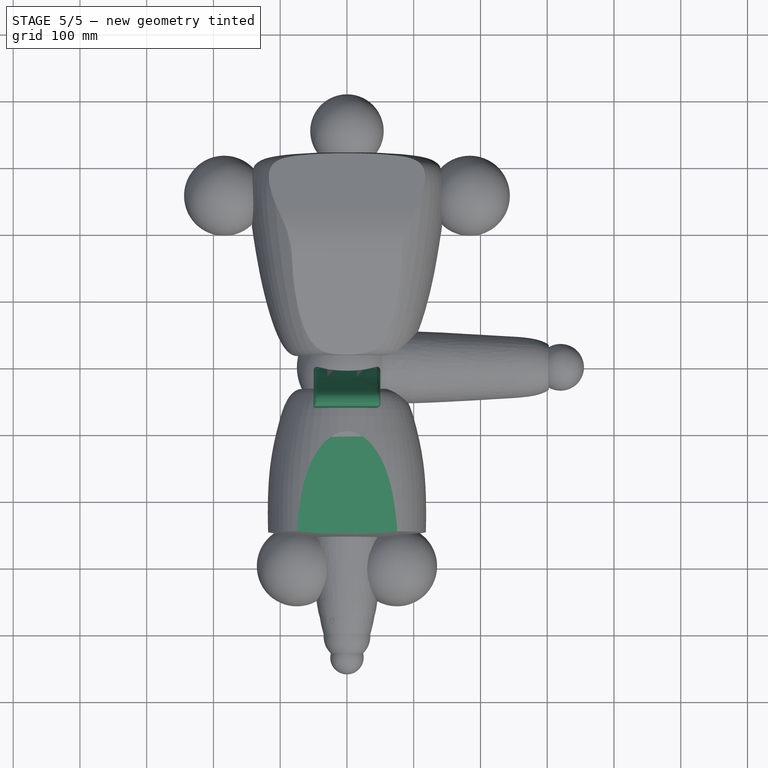
[diagram: stage 5 of 5 — top view after this stage's code; geometry added in this stage tinted green]
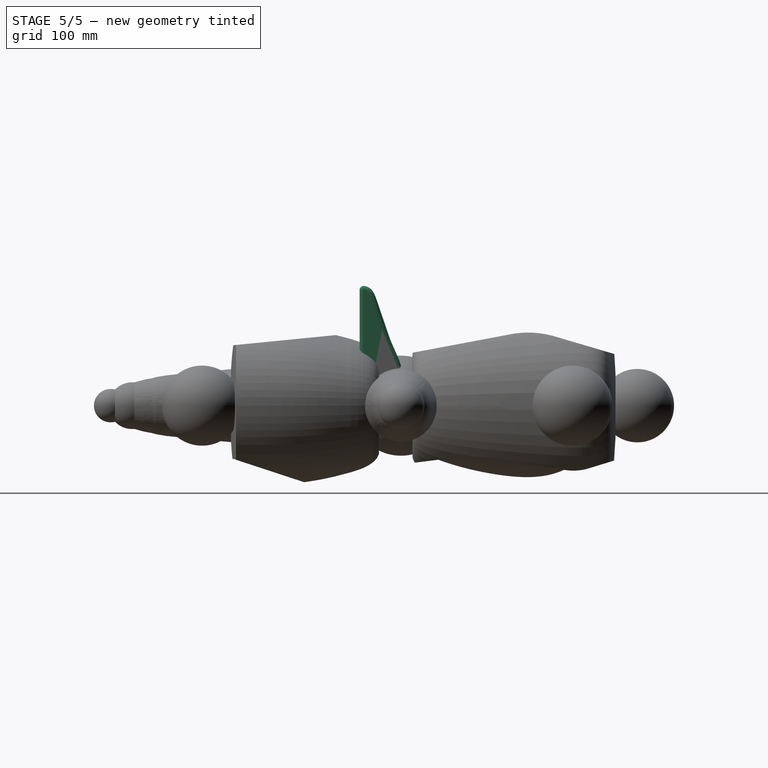
[diagram: stage 5 of 5 — right view after this stage's code; geometry added in this stage tinted green]
FEATURE [PartDesign::CoordinateSystem] Local_CS028  label="Chest/Neck LCS"
  AttacherType = Attacher::AttachEngine3D
  AttachmentOffset = pos=(354,0,0) rot=(0,0,1;0rad)
  MapMode = 4
  Placement = pos=(0,354,0) rot=(0.57735,0.57735,0.57735;2.0944rad)
  Support = -> [Revolution034]
FEATURE [PartDesign::CoordinateSystem] Local_CS029  label="Chest/Waist LCS"
  AttacherType = Attacher::AttachEngine3D
  MapMode = 2
  Support = -> [Revolution034]
FEATURE [PartDesign::CoordinateSystem] Local_CS030  label="Chest/Left shoulder LCS"
  AttacherType = Attacher::AttachEngine3D
  AttachmentOffset = pos=(184,257,0) rot=(0,0,1;0rad)
  MapMode = 2
  Placement = pos=(184,257,0) rot=(0,0,1;0rad)
  Support = -> [Revolution034]
FEATURE [PartDesign::CoordinateSystem] Local_CS031  label="Chest/Right shoulder LCS"
  AttacherType = Attacher::AttachEngine3D
  AttachmentOffset = pos=(-184,257,0) rot=(0,0,1;0rad)
  MapMode = 2
  Placement = pos=(-184,257,0) rot=(0,0,1;0rad)
  Support = -> [Revolution034]
FEATURE [Sketcher::SketchObject] Sketch063
  FullyConstrained = true
  MapMode = 5
  Support = -> [XY_Plane021]
  sketch-geometry (2):
    g0: LineSegment StartX=-1.01e-14 StartY=55 StartZ=0 EndX=-1.01e-14 EndY=-55 EndZ=0
    g1: ArcOfCircle CenterX=0 CenterY=0 CenterZ=0 NormalX=0 NormalY=0 NormalZ=1 AngleXU=0 Radius=55 StartAngle=4.71239 EndAngle=7.85398
  constraints (6):
    c: Vertical(g0)
    c: Coincident(g1,g-1)
    c: Coincident(g1,g0)
    c: Coincident(g1,g0)
    c: PointOnObject(g0,g-2)
    c: Radius(g1) = 55
FEATURE [PartDesign::Groove] Groove026
  Angle = 360
  Axis = (0,1,0)
  Base = (0,0,0)
  BaseFeature = -> Revolution033
  Profile = -> Sketch063
  ReferenceAxis = -> Sketch063 [V_Axis]
FEATURE [Sketcher::SketchObject] Sketch064
  FullyConstrained = true
  MapMode = 5
  Placement = pos=(0,0,0) rot=(1,0,0;1.5708rad)
  Support = -> [XZ_Plane021]
  sketch-geometry (5):
    g0: LineSegment StartX=-125 StartY=125 StartZ=0 EndX=125 EndY=125 EndZ=0
    g1: LineSegment StartX=125 StartY=125 StartZ=0 EndX=125 EndY=50 EndZ=0
    g2: LineSegment StartX=125 StartY=50 StartZ=0 EndX=0 EndY=75 EndZ=0
    g3: LineSegment StartX=0 StartY=75 StartZ=0 EndX=-125 EndY=50 EndZ=0
    g4: LineSegment StartX=-125 StartY=50 StartZ=0 EndX=-125 EndY=125 EndZ=0
  constraints (15):
    c: Horizontal(g0)
    c: Coincident(g0,g1)
    c: Vertical(g1)
    c: Coincident(g1,g2)
    c: Coincident(g2,g3)
    c: Coincident(g3,g4)
    c: Coincident(g4,g0)
    c: Vertical(g4)
    c: Horizontal(g3,g1)
    c: PointOnObject(g2,g-2)
    c: DistanceX(g0,g0) = 250
    c: DistanceX(g0,g-1) = 125
    c: DistanceY(g4,g4) = 75
    c: DistanceY(g-1,g2) = 75
    c: DistanceY(g-1,g0) = 125
FEATURE [PartDesign::Pocket] Pocket009
  BaseFeature = -> Groove026
  Direction = (0,1,0.05)
  Length = 300
  Length2 = 5
  Profile = -> Sketch064
  ReferenceAxis = -> Sketch064 [N_Axis]
  Type = 0
  UseCustomVector = true
FEATURE [PartDesign::Fillet] Fillet027
  Base = -> Pocket009 [Edge3]
  BaseFeature = -> Pocket009
  Radius = 3
  SupportTransform = false
  UseAllEdges = false
FEATURE [Sketcher::SketchObject] Sketch073
  FullyConstrained = true
  MapMode = 5
  Placement = pos=(0,0,0) rot=(0.57735,0.57735,0.57735;2.0944rad)
  Support = -> [YZ_Plane023]
  sketch-geometry (4):
    g0: LineSegment StartX=-309.733 StartY=84.7574 StartZ=0 EndX=-36.256 EndY=111.745 EndZ=0
    g1: LineSegment StartX=-36.256 StartY=111.745 StartZ=0 EndX=-36.256 EndY=192.709 EndZ=0
    g2: LineSegment StartX=-36.256 StartY=192.709 StartZ=0 EndX=-309.733 EndY=192.709 EndZ=0
    g3: LineSegment StartX=-309.733 StartY=192.709 StartZ=0 EndX=-309.733 EndY=84.7574 EndZ=0
  constraints (9):
    c: Coincident(g0,g1)
    c: Coincident(g1,g2)
    c: Horizontal(g2)
    c: Coincident(g2,g3)
    c: Coincident(g3,g0)
    c: Vertical(g3)
    c: Vertical(g1)
    c: Block(g3)
    c: Block(g0)
FEATURE [PartDesign::Pocket] Pocket012  label="front cut"
  BaseFeature = -> Revolution039
  Direction = (-1,2e-16,-3e-16)
  Length = 5
  Length2 = 5
  Midplane = true
  Profile = -> Sketch073
  ReferenceAxis = -> Sketch073 [N_Axis]
  Type = 1
FEATURE [Sketcher::SketchObject] Sketch074
  FullyConstrained = true
  MapMode = 5
  Placement = pos=(0,0,0) rot=(0.57735,0.57735,0.57735;2.0944rad)
  Support = -> [YZ_Plane023]
  sketch-geometry (4):
    g0: LineSegment StartX=-276.336 StartY=-71.4724 StartZ=0 EndX=-109.323 EndY=-126.411 EndZ=0
    g1: LineSegment StartX=-109.323 StartY=-126.411 StartZ=0 EndX=-109.323 EndY=-220.905 EndZ=0
    g2: LineSegment StartX=-109.323 StartY=-220.905 StartZ=0 EndX=-276.336 EndY=-220.905 EndZ=0
    g3: LineSegment StartX=-276.336 StartY=-220.905 StartZ=0 EndX=-276.336 EndY=-71.4724 EndZ=0
  constraints (9):
    c: Coincident(g0,g1)
    c: Coincident(g1,g2)
    c: Horizontal(g2)
    c: Coincident(g2,g3)
    c: Coincident(g3,g0)
    c: Vertical(g3)
    c: Vertical(g1)
    c: Block(g0)
    c: Block(g2)
FEATURE [PartDesign::Pocket] Pocket013  label="rear cut"
  BaseFeature = -> Pocket012
  Direction = (-1,2e-16,-3e-16)
  Length = 5
  Length2 = 5
  Midplane = true
  Profile = -> Sketch074
  ReferenceAxis = -> Sketch074 [N_Axis]
  Type = 1
FEATURE [PartDesign::CoordinateSystem] Local_CS040  label="Left Hand/Wrist LCS"
  AttacherType = Attacher::AttachEngine3D
  MapMode = 2
  Support = -> [Revolution044]
FEATURE [Sketcher::SketchObject] Sketch082
  FullyConstrained = true
  MapMode = 5
  Support = -> [XY_Plane026]
  sketch-geometry (2):
    g0: LineSegment StartX=-25 StartY=0 StartZ=0 EndX=25 EndY=0 EndZ=0
    g1: ArcOfCircle CenterX=0 CenterY=0 CenterZ=0 NormalX=0 NormalY=0 NormalZ=1 AngleXU=0 Radius=25 StartAngle=0 EndAngle=3.14159
  constraints (6):
    c: Horizontal(g0)
    c: PointOnObject(g1,g0)
    c: Coincident(g1,g0)
    c: Coincident(g1,g0)
    c: Coincident(g1,g-1)
    c: Radius(g1) = 25
FEATURE [PartDesign::Groove] Groove036  label="wrist cut001"
  Angle = 360
  Axis = (1,0,0)
  Base = (0,0,0)
  BaseFeature = -> Revolution044
  Profile = -> Sketch082
  ReferenceAxis = -> Sketch082 [H_Axis]
  Reversed = true
FEATURE [PartDesign::Fillet] Fillet036  label="wrist fillet001"
  Base = -> Groove036 [Edge1]
  BaseFeature = -> Groove036
  Radius = 3
  SupportTransform = false
  UseAllEdges = false
FEATURE [Sketcher::SketchObject] Sketch083
  FullyConstrained = true
  MapMode = 5
  Placement = pos=(0,0,0) rot=(0.57735,0.57735,0.57735;2.0944rad)
  Support = -> [YZ_Plane026]
  sketch-geometry (3):
    g0: ArcOfCircle CenterX=0 CenterY=125.857 CenterZ=0 NormalX=0 NormalY=0 NormalZ=1 AngleXU=0 Radius=99.8092 StartAngle=3.99571 EndAngle=5.39163
    g1: LineSegment StartX=-65.5632 StartY=50.6013 StartZ=0 EndX=0 EndY=125.857 EndZ=0
    g2: LineSegment StartX=0 StartY=125.857 StartZ=0 EndX=62.7007 EndY=48.2002 EndZ=0
  constraints (6):
    c: PointOnObject(g0,g-2)
    c: Coincident(g1,g0)
    c: Coincident(g1,g0)
    c: Coincident(g2,g0)
    c: Coincident(g2,g0)
    c: Block(g0)
FEATURE [PartDesign::Pocket] Pocket014
  BaseFeature = -> Fillet036
  Direction = (1,0,0)
  Length = 5
  Length2 = 5
  Profile = -> Sketch083
  ReferenceAxis = -> Sketch083 [N_Axis]
  Type = 1
  UseCustomVector = true
FEATURE [Sketcher::SketchObject] Sketch084
  FullyConstrained = true
  MapMode = 5
  Placement = pos=(0,0,0) rot=(0.57735,0.57735,0.57735;2.0944rad)
  Support = -> [YZ_Plane026]
  sketch-geometry (4):
    g0: ArcOfCircle CenterX=0 CenterY=78.6838 CenterZ=0 NormalX=0 NormalY=0 NormalZ=1 AngleXU=0 Radius=107.987 StartAngle=3.91888 EndAngle=5.56935
    g1: LineSegment StartX=81.6221 StartY=7.98042 StartZ=0 EndX=81.6221 EndY=-69.912 EndZ=0
    g2: LineSegment StartX=81.6221 StartY=-69.912 StartZ=0 EndX=-76.9748 EndY=-69.912 EndZ=0
    g3: LineSegment StartX=-76.9748 StartY=-69.912 StartZ=0 EndX=-76.9748 EndY=2.94733 EndZ=0
  constraints (10):
    c: PointOnObject(g0,g-2)
    c: Coincident(g0,g1)
    c: Coincident(g1,g2)
    c: Horizontal(g2)
    c: Coincident(g2,g3)
    c: Coincident(g3,g0)
    c: Vertical(g3)
    c: Vertical(g1)
    c: Block(g0)
    c: Block(g2)
FEATURE [PartDesign::Pocket] Pocket015
  BaseFeature = -> Pocket014
  Direction = (1,0,0)
  Length = 5
  Length2 = 5
  Profile = -> Sketch084
  ReferenceAxis = -> Sketch084 [N_Axis]
  Type = 1
  UseCustomVector = true
FEATURE [Sketcher::SketchObject] Sketch094
  FullyConstrained = true
  MapMode = 5
  Placement = pos=(0,0,0) rot=(0.57735,0.57735,0.57735;2.0944rad)
  Support = -> [YZ_Plane029]
  sketch-geometry (4):
    g0: ArcOfCircle CenterX=0 CenterY=78.6838 CenterZ=0 NormalX=0 NormalY=0 NormalZ=1 AngleXU=0 Radius=107.987 StartAngle=3.91888 EndAngle=5.56935
    g1: LineSegment StartX=81.6221 StartY=7.98042 StartZ=0 EndX=81.6221 EndY=-69.912 EndZ=0
    g2: LineSegment StartX=81.6221 StartY=-69.912 StartZ=0 EndX=-76.9748 EndY=-69.912 EndZ=0
    g3: LineSegment StartX=-76.9748 StartY=-69.912 StartZ=0 EndX=-76.9748 EndY=2.94733 EndZ=0
  constraints (10):
    c: PointOnObject(g0,g-2)
    c: Coincident(g0,g1)
    c: Coincident(g1,g2)
    c: Horizontal(g2)
    c: Coincident(g2,g3)
    c: Coincident(g3,g0)
    c: Vertical(g3)
    c: Vertical(g1)
    c: Block(g0)
    c: Block(g2)
FEATURE [PartDesign::Pocket] Pocket017
  BaseFeature = -> Pocket016
  Direction = (1,0,0)
  Length = 5
  Length2 = 5
  Profile = -> Sketch094
  ReferenceAxis = -> Sketch094 [N_Axis]
  Type = 1
  UseCustomVector = true
FEATURE [PartDesign::Body] Body029  label="Left Shin"
  Group = -> [Sketch098,Revolution052,Sketch099,Groove044,Fillet044,Sketch100,Groove045,Fillet045,Revolution053,Local_CS048,Local_CS049]
  Origin = -> Origin031
  Placement = pos=(75,497,0) rot=(0,0,1;0rad)
  Tip = -> Revolution053
FEATURE [Sketcher::SketchObject] Sketch101
  FullyConstrained = true
  MapMode = 5
  Placement = pos=(0,0,0) rot=(0.57735,0.57735,0.57735;2.0944rad)
  Support = -> [YZ_Plane032]
  sketch-geometry (18):
    g0: LineSegment StartX=-62 StartY=180 StartZ=0 EndX=-62 EndY=-40 EndZ=0
    g1-g9: Circle x9 (B-spline internal-alignment scaffolding for g10; pole/knot coordinates omitted)
    g10: BSplineCurve PolesCount=9 KnotsCount=7 Degree=3 IsPeriodic=0
    g11-g17: GeomPoint x7 (B-spline internal-alignment scaffolding for g10; pole/knot coordinates omitted)
  constraints (13):
    c: Vertical(g0)
    c: DistanceX(g0,g-1) = 62
    c: DistanceY(g0,g-1) = 40
    c: DistanceY(g0,g0) = 220
    c: Weight(g1) = 1
    c: Coincident(g10,g0)
    c: Equal(g1, g2-g9) x8
    c: Coincident(g10,g0)
    c: InternalAlignment(g1-g9 -> g10) x9
    c: InternalAlignment(g11-g17 -> g10) x7
    c: Horizontal(g0,g8)
    c: Horizontal(g0,g2)
    c: Block(g10)
FEATURE [PartDesign::Pad] Pad002  label="L foot main body"
  Direction = (1,-2e-16,3e-16)
  Length = 100
  Length2 = 10
  Midplane = true
  Placement = pos=(0,0,0) rot=(0.57735,0.57735,0.57735;2.0944rad)
  Profile = -> Sketch101
  ReferenceAxis = -> Sketch101 [N_Axis]
  Type = 0
FEATURE [PartDesign::Fillet] Fillet046
  Base = -> Pad002 [Edge4,Edge6,Edge1,Edge5,Edge2]
  BaseFeature = -> Pad002
  Placement = pos=(0,0,0) rot=(0.57735,0.57735,0.57735;2.0944rad)
  Radius = 6
  SupportTransform = false
  UseAllEdges = false
FEATURE [PartDesign::CoordinateSystem] Local_CS050  label="Left Foot/Ankle"
  AttacherType = Attacher::AttachEngine3D
  MapMode = 2
  Placement = pos=(0,0,0) rot=(0.57735,0.57735,0.57735;2.0944rad)
  Support = -> [Pad002]
FEATURE [Sketcher::SketchObject] Sketch102
  FullyConstrained = true
  MapMode = 5
  Support = -> [XY_Plane032]
  sketch-geometry (2):
    g0: LineSegment StartX=7.7e-15 StartY=25 StartZ=0 EndX=7.7e-15 EndY=-25 EndZ=0
    g1: ArcOfCircle CenterX=0 CenterY=0 CenterZ=0 NormalX=0 NormalY=0 NormalZ=1 AngleXU=0 Radius=25 StartAngle=4.71239 EndAngle=7.85398
  constraints (6):
    c: Vertical(g0)
    c: PointOnObject(g1,g0)
    c: Coincident(g1,g0)
    c: Coincident(g1,g0)
    c: Coincident(g1,g-1)
    c: Radius(g1) = 25
FEATURE [PartDesign::Groove] Groove046  label="Ankle cut"
  Angle = 360
  Axis = (0,1,0)
  Base = (0,0,0)
  BaseFeature = -> Fillet046
  Placement = pos=(0,0,0) rot=(0.57735,0.57735,0.57735;2.0944rad)
  Profile = -> Sketch102
  ReferenceAxis = -> Sketch102 [V_Axis]
FEATURE [PartDesign::Fillet] Fillet047
  Base = -> Groove046 [Edge20,Edge19]
  BaseFeature = -> Groove046
  Placement = pos=(0,0,0) rot=(0.57735,0.57735,0.57735;2.0944rad)
  Radius = 3
  SupportTransform = false
  UseAllEdges = false
FEATURE [PartDesign::Body] Body032  label="Right Shin"
  Group = -> [Sketch106,Revolution056,Sketch107,Groove049,Fillet050,Sketch108,Groove050,Fillet051,Revolution057,Local_CS053,Local_CS054]
  Origin = -> Origin034
  Placement = pos=(-75,497,0) rot=(0,0,1;0rad)
  Tip = -> Revolution057
FEATURE [Sketcher::SketchObject] Sketch109
  FullyConstrained = true
  MapMode = 5
  Placement = pos=(0,0,0) rot=(0.57735,0.57735,0.57735;2.0944rad)
  Support = -> [YZ_Plane035]
  sketch-geometry (18):
    g0: LineSegment StartX=-62 StartY=180 StartZ=0 EndX=-62 EndY=-40 EndZ=0
    g1-g9: Circle x9 (B-spline internal-alignment scaffolding for g10; pole/knot coordinates omitted)
    g10: BSplineCurve PolesCount=9 KnotsCount=7 Degree=3 IsPeriodic=0
    g11-g17: GeomPoint x7 (B-spline internal-alignment scaffolding for g10; pole/knot coordinates omitted)
  constraints (13):
    c: Vertical(g0)
    c: DistanceX(g0,g-1) = 62
    c: DistanceY(g0,g-1) = 40
    c: DistanceY(g0,g0) = 220
    c: Weight(g1) = 1
    c: Coincident(g10,g0)
    c: Equal(g1, g2-g9) x8
    c: Coincident(g10,g0)
    c: InternalAlignment(g1-g9 -> g10) x9
    c: InternalAlignment(g11-g17 -> g10) x7
    c: Horizontal(g0,g8)
    c: Horizontal(g0,g2)
    c: Block(g10)
FEATURE [PartDesign::Pad] Pad003  label="R foot main body"
  Direction = (1,-2e-16,3e-16)
  Length = 100
  Length2 = 10
  Midplane = true
  Placement = pos=(0,0,0) rot=(0.57735,0.57735,0.57735;2.0944rad)
  Profile = -> Sketch109
  ReferenceAxis = -> Sketch109 [N_Axis]
  Type = 0
FEATURE [PartDesign::Fillet] Fillet052
  Base = -> Pad003 [Edge4,Edge6,Edge1,Edge5,Edge2]
  BaseFeature = -> Pad003
  Placement = pos=(0,0,0) rot=(0.57735,0.57735,0.57735;2.0944rad)
  Radius = 6
  SupportTransform = false
  UseAllEdges = false
FEATURE [PartDesign::CoordinateSystem] Local_CS055  label="Right Foot/Ankle"
  AttacherType = Attacher::AttachEngine3D
  MapMode = 2
  Placement = pos=(0,0,0) rot=(0.57735,0.57735,0.57735;2.0944rad)
  Support = -> [Pad003]
FEATURE [Sketcher::SketchObject] Sketch110
  FullyConstrained = true
  MapMode = 5
  Support = -> [XY_Plane035]
  sketch-geometry (2):
    g0: LineSegment StartX=7.7e-15 StartY=25 StartZ=0 EndX=7.7e-15 EndY=-25 EndZ=0
    g1: ArcOfCircle CenterX=0 CenterY=0 CenterZ=0 NormalX=0 NormalY=0 NormalZ=1 AngleXU=0 Radius=25 StartAngle=4.71239 EndAngle=7.85398
  constraints (6):
    c: Vertical(g0)
    c: PointOnObject(g1,g0)
    c: Coincident(g1,g0)
    c: Coincident(g1,g0)
    c: Coincident(g1,g-1)
    c: Radius(g1) = 25
FEATURE [PartDesign::Groove] Groove051  label="Ankle cut003"
  Angle = 360
  Axis = (0,1,0)
  Base = (0,0,0)
  BaseFeature = -> Fillet052
  Placement = pos=(0,0,0) rot=(0.57735,0.57735,0.57735;2.0944rad)
  Profile = -> Sketch110
  ReferenceAxis = -> Sketch110 [V_Axis]
FEATURE [PartDesign::Fillet] Fillet053
  Base = -> Groove051 [Edge20,Edge19]
  BaseFeature = -> Groove051
  Placement = pos=(0,0,0) rot=(0.57735,0.57735,0.57735;2.0944rad)
  Radius = 3
  SupportTransform = false
  UseAllEdges = false
FEATURE [PartDesign::Body] Body033  label="Right foot"
  Group = -> [Sketch109,Pad003,Fillet052,Sketch110,Groove051,Fillet053,Local_CS055]
  Origin = -> Origin035
  Placement = pos=(-75,62,0) rot=(0,0,1;0rad)
  Tip = -> Fillet053
FEATURE [App::Part] Part_2  label="Mannequin_mp-dummy-1850m-standing-000"
  Group = -> [LCS_0,Body019,Body020,Body021,Body022,Body023,Body024,Body025,Body026,Body027,Body028,Body029,Body030,Body031,Body032,Body033]
  Origin = -> Origin020
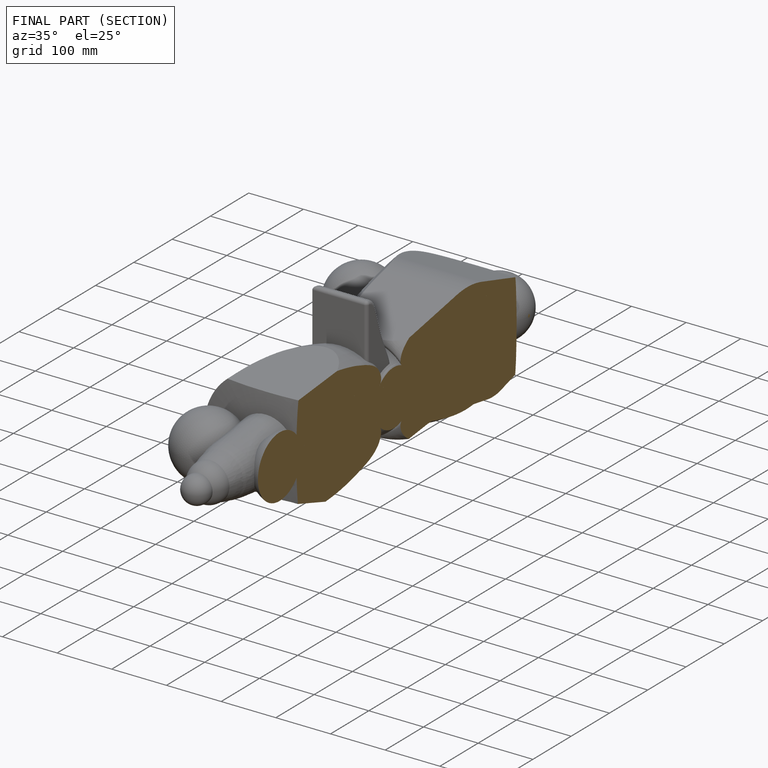
[diagram: finished part — half-section view (interior)]
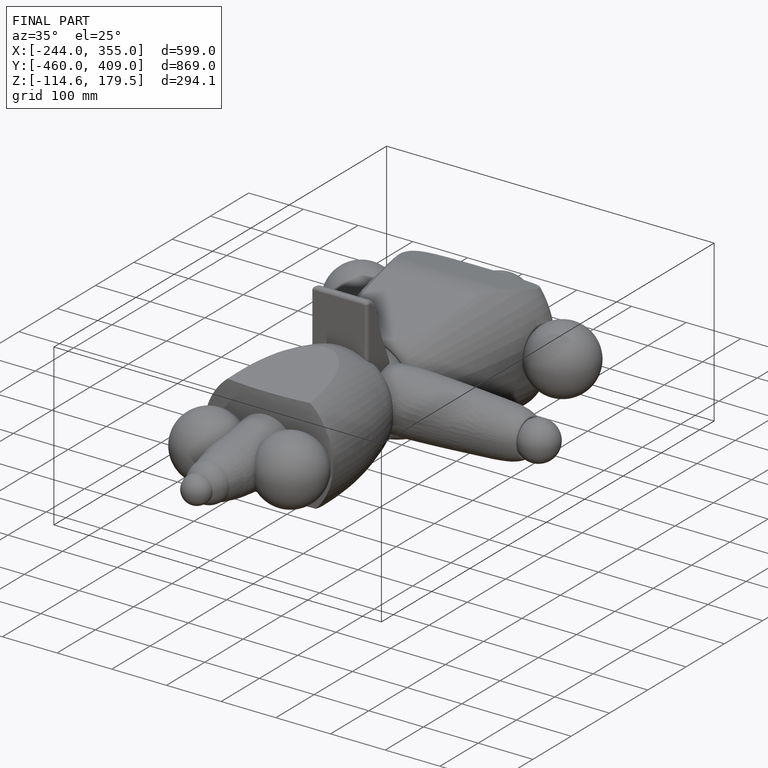
[diagram: finished part — iso view with bounding-box wireframe]
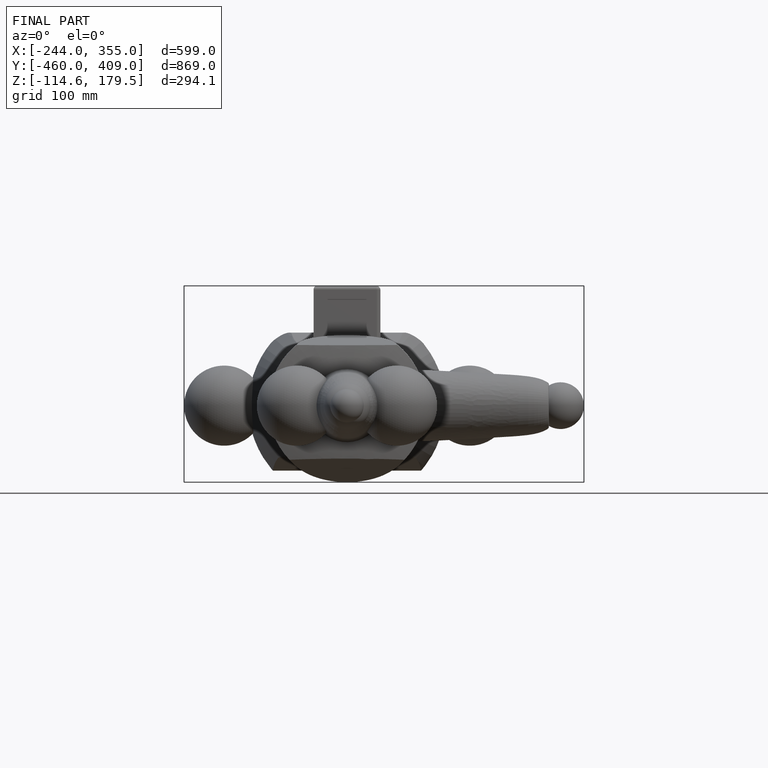
[diagram: finished part — front view with bounding-box wireframe]
